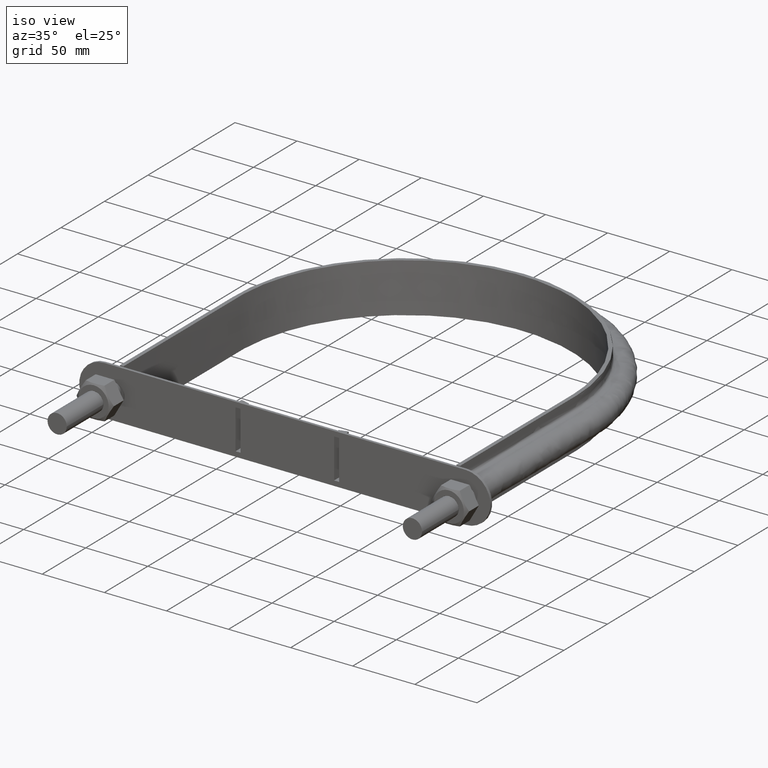
[diagram: clean part render]
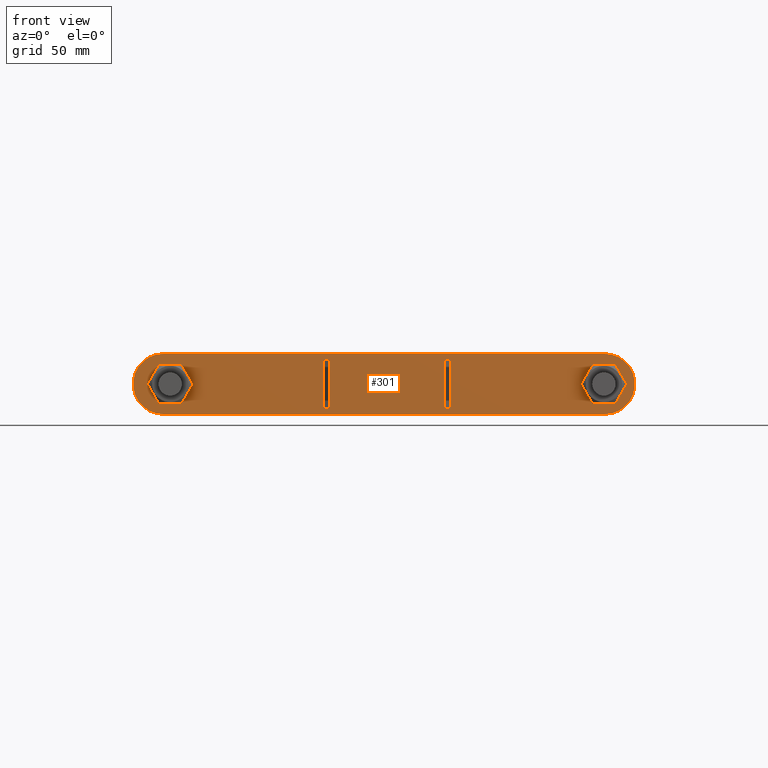
[diagram: tour spotlight — one face highlighted and labeled with its STEP entity id]
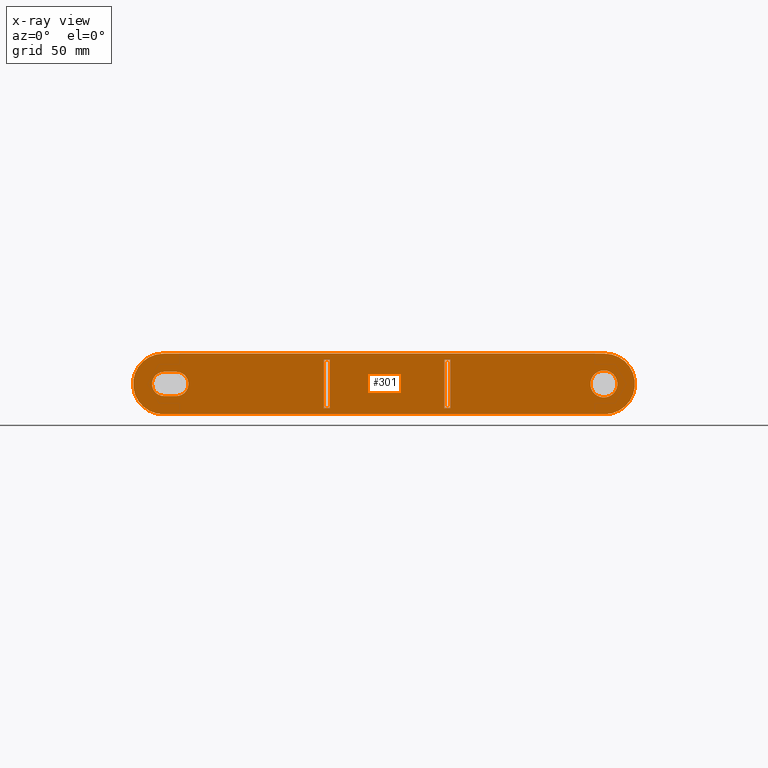
[diagram: x-ray of the same camera — body ghosted, this tour face saturated]
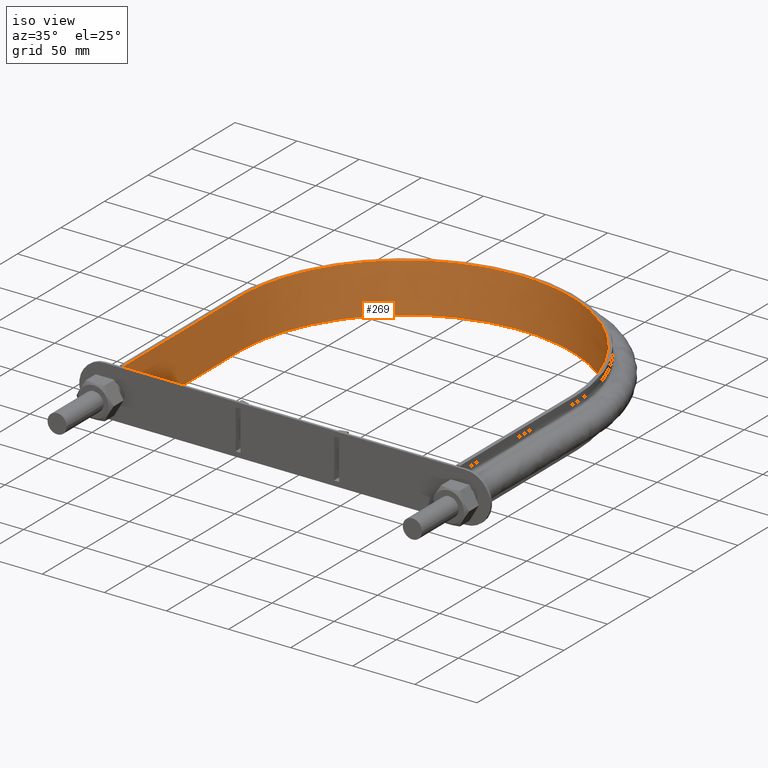
[diagram: tour spotlight — one face highlighted and labeled with its STEP entity id]
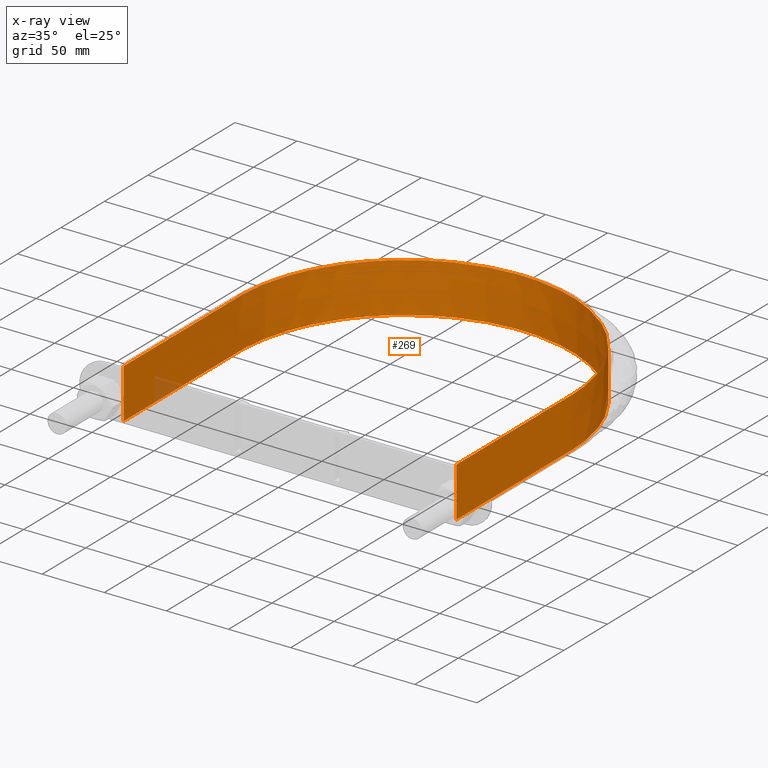
[diagram: x-ray of the same camera — body ghosted, this tour face saturated]
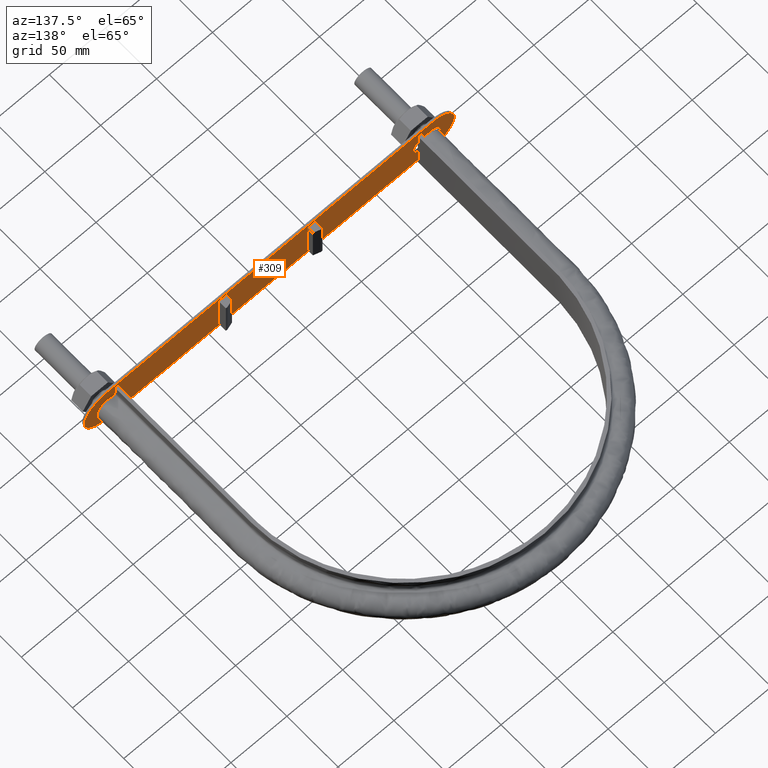
[diagram: tour spotlight — one face highlighted and labeled with its STEP entity id]
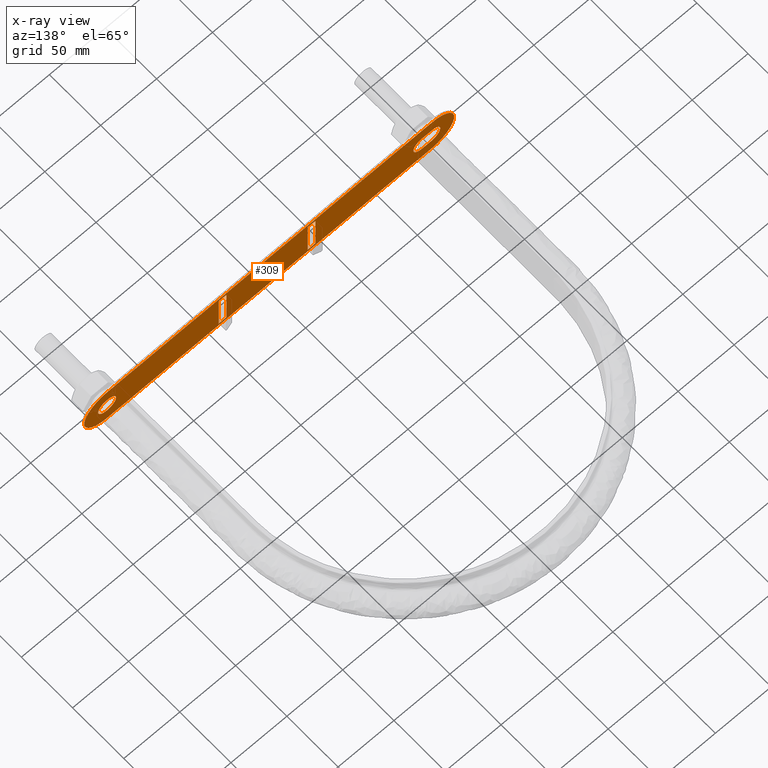
[diagram: x-ray of the same camera — body ghosted, this tour face saturated]
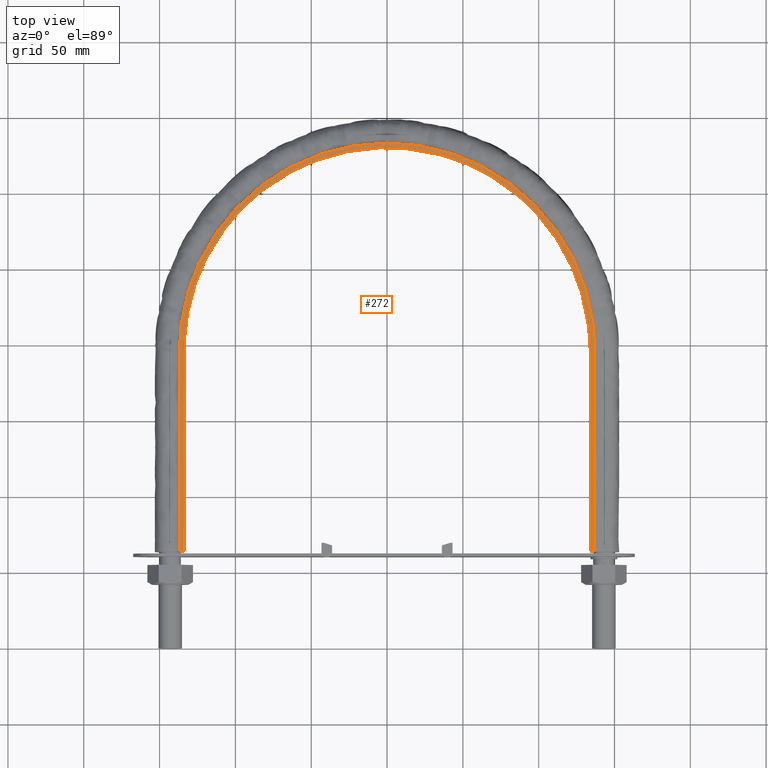
[diagram: tour spotlight — one face highlighted and labeled with its STEP entity id]
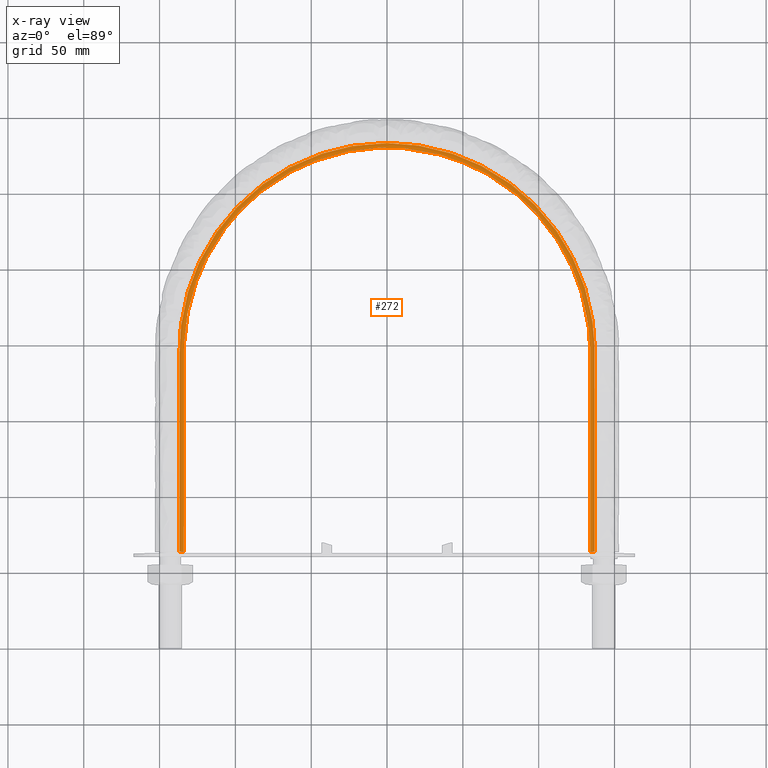
[diagram: x-ray of the same camera — body ghosted, this tour face saturated]
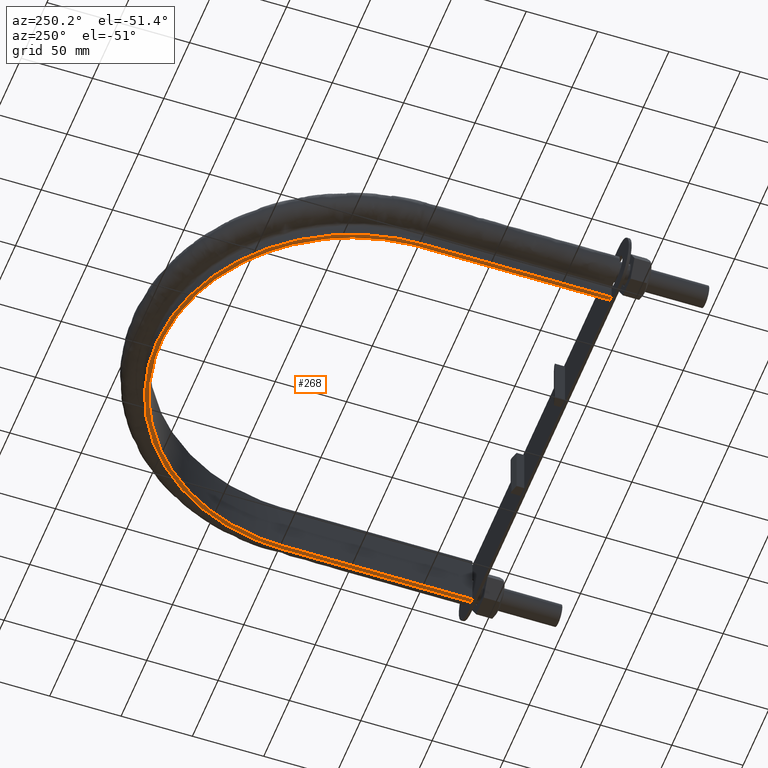
[diagram: tour spotlight — one face highlighted and labeled with its STEP entity id]
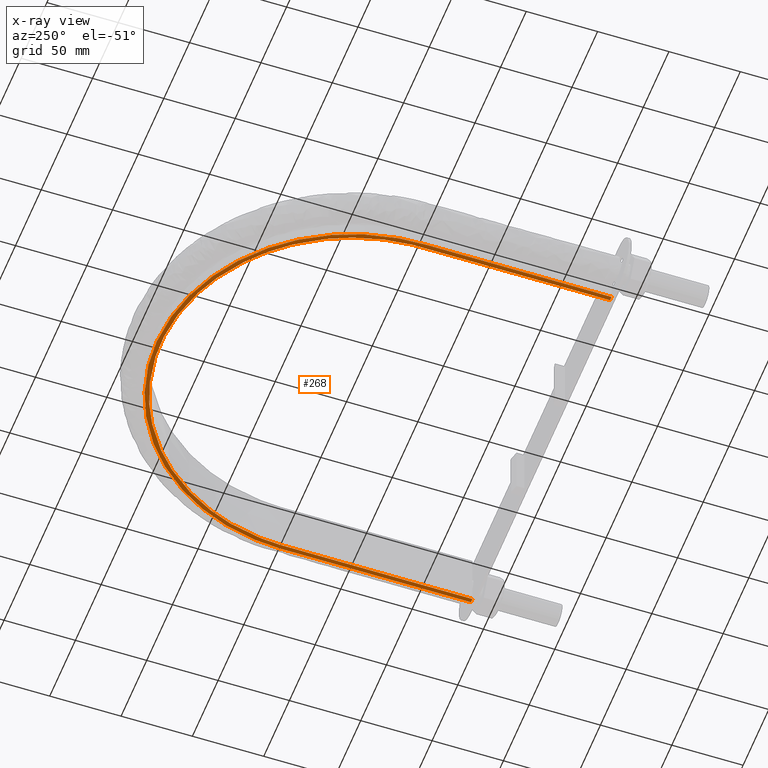
[diagram: x-ray of the same camera — body ghosted, this tour face saturated]
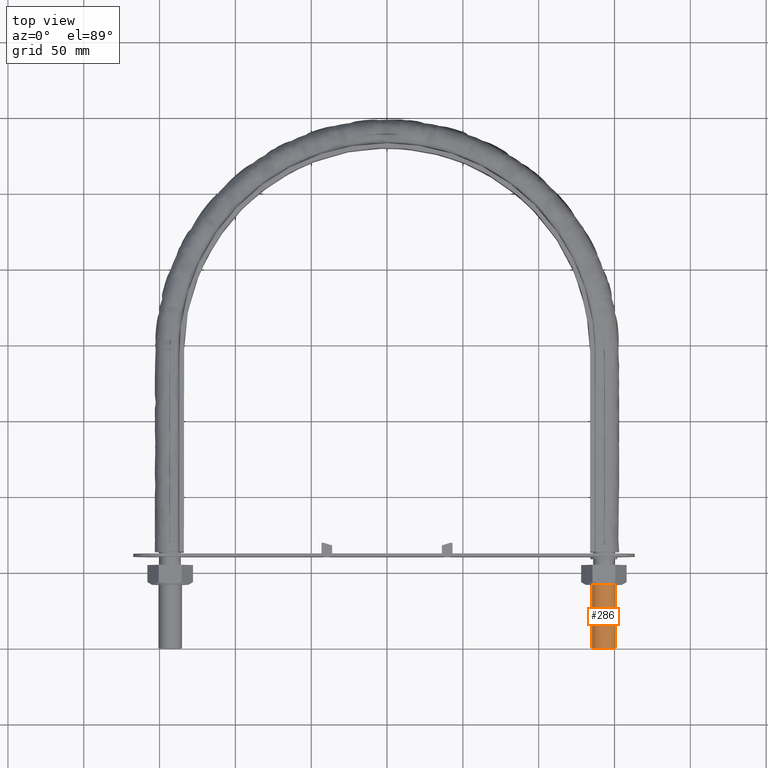
[diagram: tour spotlight — one face highlighted and labeled with its STEP entity id]
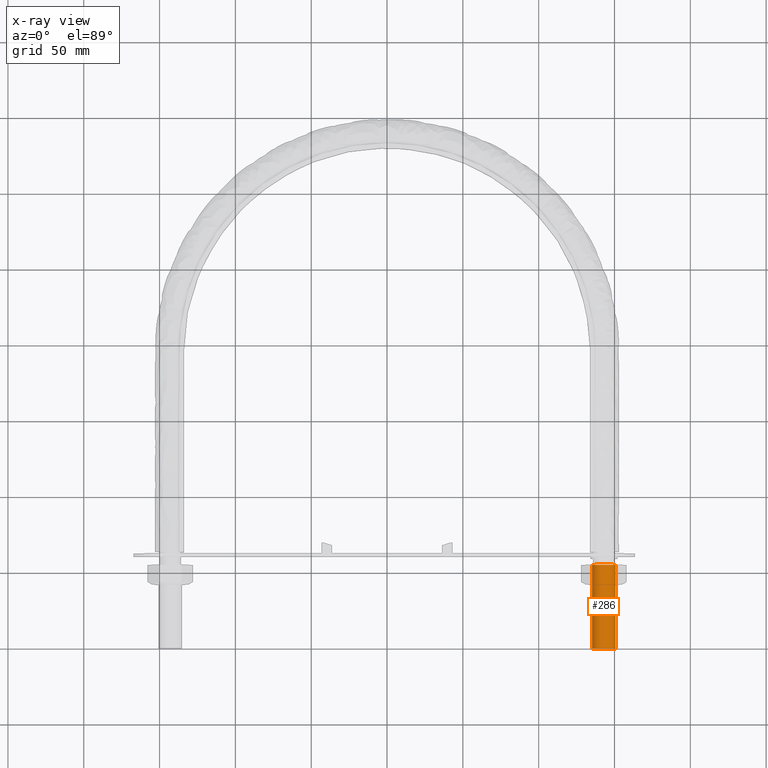
[diagram: x-ray of the same camera — body ghosted, this tour face saturated]
A machine part: a face-by-face anatomy tour. The part has 93 B-rep faces; the first image is the clean iso view, then the 6 largest visible faces are spotlighted one at a time (largest first), each with its STEP entity span.

Face 1 — front view, entity #301. An x-ray twin of the same camera follows (body ghosted, this face saturated) — the face is partly hidden behind the body. In plain terms, the highlighted planar face has unit normal (-0, 1, 0).
Definition (entity closure, byte-faithful):
#301 = ADVANCED_FACE( '', ( #439, #440, #441, #442, #443 ), #444, .F. );
#439 = FACE_OUTER_BOUND( '', #1576, .T. );
#440 = FACE_BOUND( '', #1577, .T. );
#441 = FACE_BOUND( '', #1578, .T. );
#442 = FACE_BOUND( '', #1579, .T. );
#443 = FACE_BOUND( '', #1580, .T. );
#444 = PLANE( '', #1581 );
#1576 = EDGE_LOOP( '', ( #2123, #2124, #2125, #2126 ) );
#1577 = EDGE_LOOP( '', ( #2127, #2128, #2129, #2130 ) );
#1578 = EDGE_LOOP( '', ( #2131 ) );
#1579 = EDGE_LOOP( '', ( #2132, #2133, #2134, #2135 ) );
#1580 = EDGE_LOOP( '', ( #2136, #2137, #2138, #2139 ) );
#1581 = AXIS2_PLACEMENT_3D( '', #2140, #2141, #2142 );
#2123 = ORIENTED_EDGE( '', *, *, #2614, .F. );
#2124 = ORIENTED_EDGE( '', *, *, #2615, .F. );
#2125 = ORIENTED_EDGE( '', *, *, #2616, .F. );
#2126 = ORIENTED_EDGE( '', *, *, #2617, .F. );
#2127 = ORIENTED_EDGE( '', *, *, #2618, .F. );
#2128 = ORIENTED_EDGE( '', *, *, #2619, .T. );
#2129 = ORIENTED_EDGE( '', *, *, #2620, .T. );
#2130 = ORIENTED_EDGE( '', *, *, #2621, .F. );
#2131 = ORIENTED_EDGE( '', *, *, #2622, .T. );
#2132 = ORIENTED_EDGE( '', *, *, #2623, .F. );
#2133 = ORIENTED_EDGE( '', *, *, #2624, .F. );
#2134 = ORIENTED_EDGE( '', *, *, #2625, .F. );
#2135 = ORIENTED_EDGE( '', *, *, #2626, .F. );
#2136 = ORIENTED_EDGE( '', *, *, #2627, .T. );
#2137 = ORIENTED_EDGE( '', *, *, #2628, .T. );
#2138 = ORIENTED_EDGE( '', *, *, #2629, .F. );
#2139 = ORIENTED_EDGE( '', *, *, #2630, .F. );
#2140 = CARTESIAN_POINT( '', ( -147.499999999969, 60.3999999977114, 1.03328031514239E-006 ) );
#2141 = DIRECTION( '', ( -1.56855491318814E-022, 1.00000000000000, 1.01088637402293E-011 ) );
#2142 = DIRECTION( '', ( 1.00000000000000, 2.35098870164458E-038, 1.55166293017277E-011 ) );
#2614 = EDGE_CURVE( '', #2836, #2837, #2838, .T. );
#2615 = EDGE_CURVE( '', #2839, #2836, #2840, .F. );
#2616 = EDGE_CURVE( '', #2841, #2839, #2842, .T. );
#2617 = EDGE_CURVE( '', #2837, #2841, #2843, .F. );
#2618 = EDGE_CURVE( '', #2844, #2845, #2846, .F. );
#2619 = EDGE_CURVE( '', #2844, #2847, #2848, .T. );
#2620 = EDGE_CURVE( '', #2847, #2849, #2850, .T. );
#2621 = EDGE_CURVE( '', #2845, #2849, #2851, .T. );
#2622 = EDGE_CURVE( '', #2852, #2852, #2853, .T. );
#2623 = EDGE_CURVE( '', #2854, #2855, #2856, .F. );
#2624 = EDGE_CURVE( '', #2857, #2854, #2858, .T. );
#2625 = EDGE_CURVE( '', #2859, #2857, #2860, .F. );
#2626 = EDGE_CURVE( '', #2855, #2859, #2861, .T. );
#2627 = EDGE_CURVE( '', #2862, #2863, #2864, .F. );
#2628 = EDGE_CURVE( '', #2863, #2865, #2866, .T. );
#2629 = EDGE_CURVE( '', #2867, #2865, #2868, .T. );
#2630 = EDGE_CURVE( '', #2862, #2867, #2869, .T. );
#2836 = VERTEX_POINT( '', #3640 );
#2837 = VERTEX_POINT( '', #3641 );
#2838 = CIRCLE( '', #3642, 20.0000000000000 );
#2839 = VERTEX_POINT( '', #3643 );
#2840 = LINE( '', #3644, #3645 );
#2841 = VERTEX_POINT( '', #3646 );
#2842 = CIRCLE( '', #3647, 20.0000000000000 );
#2843 = LINE( '', #3648, #3649 );
#2844 = VERTEX_POINT( '', #3650 );
#2845 = VERTEX_POINT( '', #3651 );
#2846 = LINE( '', #3652, #3653 );
#2847 = VERTEX_POINT( '', #3654 );
#2848 = LINE( '', #3655, #3656 );
#2849 = VERTEX_POINT( '', #3657 );
#2850 = LINE( '', #3658, #3659 );
#2851 = LINE( '', #3660, #3661 );
#2852 = VERTEX_POINT( '', #3662 );
#2853 = CIRCLE( '', #3663, 8.89999999999999 );
#2854 = VERTEX_POINT( '', #3664 );
#2855 = VERTEX_POINT( '', #3665 );
#2856 = CIRCLE( '', #3666, 8.00000000000000 );
#2857 = VERTEX_POINT( '', #3667 );
#2858 = LINE( '', #3668, #3669 );
#2859 = VERTEX_POINT( '', #3670 );
#2860 = CIRCLE( '', #3671, 8.00000000000000 );
#2861 = LINE( '', #3672, #3673 );
#2862 = VERTEX_POINT( '', #3674 );
#2863 = VERTEX_POINT( '', #3675 );
#2864 = LINE( '', #3676, #3677 );
#2865 = VERTEX_POINT( '', #3678 );
#2866 = LINE( '', #3679, #3680 );
#2867 = VERTEX_POINT( '', #3681 );
#2868 = LINE( '', #3682, #3683 );
#2869 = LINE( '', #3684, #3685 );
#3640 = CARTESIAN_POINT( '', ( -147.500000140078, 60.3999999979136, -19.9999989667197 ) );
#3641 = CARTESIAN_POINT( '', ( -147.499999929915, 60.3999999975092, 20.0000010332803 ) );
#3642 = AXIS2_PLACEMENT_3D( '', #4160, #4161, #4162 );
#3643 = CARTESIAN_POINT( '', ( 143.499999859923, 60.3999999979136, -20.0000010053000 ) );
#3644 = CARTESIAN_POINT( '', ( 143.499999859922, 60.3999999979136, -20.0000010053000 ) );
#3645 = VECTOR( '', #4163, 1000.00000000000 );
#3646 = CARTESIAN_POINT( '', ( 143.500000070086, 60.3999999975092, 19.9999989947000 ) );
#3647 = AXIS2_PLACEMENT_3D( '', #4164, #4165, #4166 );
#3648 = CARTESIAN_POINT( '', ( -147.499999859860, 60.3999999975092, 20.0000010332803 ) );
#3649 = VECTOR( '', #4167, 1000.00000000000 );
#3650 = CARTESIAN_POINT( '', ( -41.7000001120559, 60.3999999978731, -15.9999997078942 ) );
#3651 = CARTESIAN_POINT( '', ( -37.7000001120559, 60.3999999978731, -15.9999997359160 ) );
#3652 = CARTESIAN_POINT( '', ( -41.7000001121709, 60.3999999978731, -15.9999997078942 ) );
#3653 = VECTOR( '', #4168, 1000.00000000000 );
#3654 = CARTESIAN_POINT( '', ( -41.6999998878821, 60.3999999975497, 16.0000002921058 ) );
#3655 = CARTESIAN_POINT( '', ( -41.6999999999690, 60.3999999977114, 2.92105749198484E-007 ) );
#3656 = VECTOR( '', #4169, 1000.00000000000 );
#3657 = CARTESIAN_POINT( '', ( -37.6999998878821, 60.3999999975496, 16.0000002640840 ) );
#3658 = CARTESIAN_POINT( '', ( -147.499999887882, 60.3999999975497, 16.0000010332803 ) );
#3659 = VECTOR( '', #4170, 1000.00000000000 );
#3660 = CARTESIAN_POINT( '', ( -37.7000001120559, 60.3999999978731, -15.9999997359160 ) );
#3661 = VECTOR( '', #4171, 1000.00000000000 );
#3662 = CARTESIAN_POINT( '', ( 143.000000000031, 60.3999999976214, 8.89999899820267 ) );
#3663 = AXIS2_PLACEMENT_3D( '', #4172, #4173, #4174 );
#3664 = CARTESIAN_POINT( '', ( -146.999999971947, 60.3999999976305, 8.00000102977759 ) );
#3665 = CARTESIAN_POINT( '', ( -147.000000056013, 60.3999999977923, -7.99999897022241 ) );
#3666 = AXIS2_PLACEMENT_3D( '', #4175, #4176, #4177 );
#3667 = CARTESIAN_POINT( '', ( -138.999999971947, 60.3999999976305, 8.00000097373415 ) );
#3668 = CARTESIAN_POINT( '', ( -138.999999943957, 60.3999999976305, 8.00000097373415 ) );
#3669 = VECTOR( '', #4178, 1000.00000000000 );
#3670 = CARTESIAN_POINT( '', ( -139.000000056013, 60.3999999977923, -7.99999902626585 ) );
#3671 = AXIS2_PLACEMENT_3D( '', #4179, #4180, #4181 );
#3672 = CARTESIAN_POINT( '', ( -147.000000056044, 60.3999999977923, -7.99999897022241 ) );
#3673 = VECTOR( '', #4182, 1000.00000000000 );
#3674 = CARTESIAN_POINT( '', ( 41.6999998879441, 60.3999999978731, -16.0000002921471 ) );
#3675 = CARTESIAN_POINT( '', ( 37.6999998879441, 60.3999999978731, -16.0000002641254 ) );
#3676 = CARTESIAN_POINT( '', ( -147.500000112056, 60.3999999978731, -15.9999989667197 ) );
#3677 = VECTOR( '', #4183, 1000.00000000000 );
#3678 = CARTESIAN_POINT( '', ( 37.7000001121179, 60.3999999975496, 15.9999997358746 ) );
#3679 = CARTESIAN_POINT( '', ( 37.7000000000310, 60.3999999977114, -2.64125446793445E-007 ) );
#3680 = VECTOR( '', #4184, 1000.00000000000 );
#3681 = CARTESIAN_POINT( '', ( 41.7000001121179, 60.3999999975496, 15.9999997078529 ) );
#3682 = CARTESIAN_POINT( '', ( 41.7000001120029, 60.3999999975496, 15.9999997078529 ) );
#3683 = VECTOR( '', #4185, 1000.00000000000 );
#3684 = CARTESIAN_POINT( '', ( 41.6999998879441, 60.3999999978731, -16.0000002921471 ) );
#3685 = VECTOR( '', #4186, 1000.00000000000 );
#4160 = CARTESIAN_POINT( '', ( -147.499999999969, 60.3999999977114, 1.03328031514239E-006 ) );
#4161 = DIRECTION( '', ( -1.56855491318814E-022, 1.00000000000000, 1.01088637402293E-011 ) );
#4162 = DIRECTION( '', ( 0.000000000000000, -1.01088637402293E-011, 1.00000000000000 ) );
#4163 = DIRECTION( '', ( 1.00000000000000, 7.09737996770515E-020, -7.00543067999911E-009 ) );
#4164 = CARTESIAN_POINT( '', ( 143.500000000031, 60.3999999977114, -1.00530001273736E-006 ) );
#4165 = DIRECTION( '', ( -1.56855491318814E-022, 1.00000000000000, 1.01088637402293E-011 ) );
#4166 = DIRECTION( '', ( 0.000000000000000, -1.01088637402293E-011, 1.00000000000000 ) );
#4167 = DIRECTION( '', ( -1.00000000000000, -7.09737996770515E-020, 7.00543067999911E-009 ) );
#4168 = DIRECTION( '', ( -1.00000000000000, -7.09737995515944E-020, 7.00543066758851E-009 ) );
#4169 = DIRECTION( '', ( 7.00543067999911E-009, -1.01088637402293E-011, 1.00000000000000 ) );
#4170 = DIRECTION( '', ( 1.00000000000000, 7.09737995515944E-020, -7.00543066758851E-009 ) );
#4171 = DIRECTION( '', ( 7.00543067999911E-009, -1.01088637402293E-011, 1.00000000000000 ) );
#4172 = CARTESIAN_POINT( '', ( 143.000000000031, 60.3999999977114, -1.00179731821404E-006 ) );
#4173 = DIRECTION( '', ( -1.56855491318814E-022, 1.00000000000000, 1.01088637402293E-011 ) );
#4174 = DIRECTION( '', ( 0.000000000000000, -1.01088637402293E-011, 1.00000000000000 ) );
#4175 = CARTESIAN_POINT( '', ( -146.999999999969, 60.3999999977114, 1.02977759286350E-006 ) );
#4176 = DIRECTION( '', ( -1.56855491318814E-022, 1.00000000000000, 1.01088637402293E-011 ) );
#4177 = DIRECTION( '', ( 0.000000000000000, -1.01088637402293E-011, 1.00000000000000 ) );
#4178 = DIRECTION( '', ( -1.00000000000000, -7.09737996770515E-020, 7.00543067999911E-009 ) );
#4179 = CARTESIAN_POINT( '', ( -138.999999999969, 60.3999999977114, 9.73734147423503E-007 ) );
#4180 = DIRECTION( '', ( -1.56855491318814E-022, 1.00000000000000, 1.01088637402293E-011 ) );
#4181 = DIRECTION( '', ( 0.000000000000000, -1.01088637402293E-011, 1.00000000000000 ) );
#4182 = DIRECTION( '', ( 1.00000000000000, 7.09737996770515E-020, -7.00543067999911E-009 ) );
#4183 = DIRECTION( '', ( 1.00000000000000, 7.09737998025086E-020, -7.00543069240972E-009 ) );
#4184 = DIRECTION( '', ( 7.00543067999911E-009, -1.01088637402293E-011, 1.00000000000000 ) );
#4185 = DIRECTION( '', ( -1.00000000000000, -7.09737998025086E-020, 7.00543069240972E-009 ) );
#4186 = DIRECTION( '', ( 7.00543067999911E-009, -1.01088637402293E-011, 1.00000000000000 ) );

Face 2 — iso view, entity #269. An x-ray twin of the same camera follows (body ghosted, this face saturated) — the face is partly hidden behind the body. In plain terms, the highlighted face is a SurfaceOfExtrusion surface.
Definition (entity closure, byte-faithful):
#269 = ADVANCED_FACE( '', ( #365 ), #366, .T. );
#365 = FACE_OUTER_BOUND( '', #585, .T. );
#366 = SURFACE_OF_LINEAR_EXTRUSION( '', #586, #587 );
#585 = EDGE_LOOP( '', ( #1822, #1823, #1824, #1825 ) );
#586 = B_SPLINE_CURVE_WITH_KNOTS( '', 3, ( #1826, #1827, #1828, #1829, #1830, #1831, #1832, #1833, #1834, #1835, #1836, #1837, #1838, #1839, #1840, #1841, #1842 ), .UNSPECIFIED., .F., .F., ( 4, 3, 1, 1, 1, 1, 1, 1, 1, 3, 4 ), ( -10.0000000000000, -9.00000000000000, -8.00000000000000, -7.00000000000000, -6.00000000000000, -5.00000000000000, -4.00000000000000, -3.00000000000000, -2.00000000000000, -1.00000000000000, 0.000000000000000 ), .UNSPECIFIED. );
#587 = VECTOR( '', #1843, 1000.00000000000 );
#1822 = ORIENTED_EDGE( '', *, *, #2564, .T. );
#1823 = ORIENTED_EDGE( '', *, *, #2565, .F. );
#1824 = ORIENTED_EDGE( '', *, *, #2566, .F. );
#1825 = ORIENTED_EDGE( '', *, *, #2560, .T. );
#1826 = CARTESIAN_POINT( '', ( -133.950000000000, 63.5000000000001, -440.423363781454 ) );
#1827 = CARTESIAN_POINT( '', ( -133.950000000000, 107.683333333333, -440.423363781454 ) );
#1828 = CARTESIAN_POINT( '', ( -133.950000000000, 151.866666666667, -440.423363781454 ) );
#1829 = CARTESIAN_POINT( '', ( -133.950000000000, 196.050000000000, -440.423363781454 ) );
#1830 = CARTESIAN_POINT( '', ( -133.950000000000, 213.566032700257, -440.423363781454 ) );
#1831 = CARTESIAN_POINT( '', ( -126.975474198415, 248.652216480459, -440.423363781454 ) );
#1832 = CARTESIAN_POINT( '', ( -97.1828205848687, 293.230867859828, -440.423363781454 ) );
#1833 = CARTESIAN_POINT( '', ( -52.5949635017385, 323.026032119855, -440.423363781454 ) );
#1834 = CARTESIAN_POINT( '', ( 9.63501791762652E-014, 333.486983940073, -440.423363781454 ) );
#1835 = CARTESIAN_POINT( '', ( 52.5949635017385, 323.026032119855, -440.423363781454 ) );
#1836 = CARTESIAN_POINT( '', ( 97.1828205848688, 293.230867859828, -440.423363781454 ) );
#1837 = CARTESIAN_POINT( '', ( 126.975474198415, 248.652216480460, -440.423363781454 ) );
#1838 = CARTESIAN_POINT( '', ( 133.950000000000, 213.566032700257, -440.423363781454 ) );
#1839 = CARTESIAN_POINT( '', ( 133.950000000000, 196.050000000000, -440.423363781454 ) );
#1840 = CARTESIAN_POINT( '', ( 133.950000000000, 151.866666666667, -440.423363781454 ) );
#1841 = CARTESIAN_POINT( '', ( 133.950000000000, 107.683333333333, -440.423363781454 ) );
#1842 = CARTESIAN_POINT( '', ( 133.950000000000, 63.5000000000000, -440.423363781454 ) );
#1843 = DIRECTION( '', ( 0.000000000000000, 0.000000000000000, 1.00000000000000 ) );
#2560 = EDGE_CURVE( '', #2750, #2751, #2752, .T. );
#2564 = EDGE_CURVE( '', #2751, #2758, #2759, .T. );
#2565 = EDGE_CURVE( '', #2760, #2758, #2761, .T. );
#2566 = EDGE_CURVE( '', #2750, #2760, #2762, .T. );
#2750 = VERTEX_POINT( '', #3186 );
#2751 = VERTEX_POINT( '', #3187 );
#2752 = B_SPLINE_CURVE_WITH_KNOTS( '', 3, ( #3188, #3189, #3190, #3191, #3192, #3193, #3194, #3195, #3196, #3197, #3198, #3199, #3200, #3201, #3202, #3203, #3204 ), .UNSPECIFIED., .F., .F., ( 4, 3, 1, 1, 1, 1, 1, 1, 1, 3, 4 ), ( -10.0000000000000, -9.00000000000000, -8.00000000000000, -7.00000000000000, -6.00000000000000, -5.00000000000000, -4.00000000000000, -3.00000000000000, -2.00000000000000, -1.00000000000000, 0.000000000000000 ), .UNSPECIFIED. );
#2758 = VERTEX_POINT( '', #3318 );
#2759 = LINE( '', #3319, #3320 );
#2760 = VERTEX_POINT( '', #3321 );
#2761 = B_SPLINE_CURVE_WITH_KNOTS( '', 3, ( #3322, #3323, #3324, #3325, #3326, #3327, #3328, #3329, #3330, #3331, #3332, #3333, #3334, #3335, #3336, #3337, #3338 ), .UNSPECIFIED., .F., .F., ( 4, 3, 1, 1, 1, 1, 1, 1, 1, 3, 4 ), ( -10.0000000000000, -9.00000000000000, -8.00000000000000, -7.00000000000000, -6.00000000000000, -5.00000000000000, -4.00000000000000, -3.00000000000000, -2.00000000000000, -1.00000000000000, 0.000000000000000 ), .UNSPECIFIED. );
#2762 = LINE( '', #3339, #3340 );
#3186 = CARTESIAN_POINT( '', ( -133.950000000000, 63.5000000000001, -20.0000000000000 ) );
#3187 = CARTESIAN_POINT( '', ( 133.950000000000, 63.5000000000000, -20.0000000000000 ) );
#3188 = CARTESIAN_POINT( '', ( -133.950000000000, 63.5000000000001, -20.0000000000000 ) );
#3189 = CARTESIAN_POINT( '', ( -133.950000000000, 107.683333333333, -20.0000000000000 ) );
#3190 = CARTESIAN_POINT( '', ( -133.950000000000, 151.866666666667, -20.0000000000000 ) );
#3191 = CARTESIAN_POINT( '', ( -133.950000000000, 196.050000000000, -20.0000000000000 ) );
#3192 = CARTESIAN_POINT( '', ( -133.950000000000, 213.566032700257, -20.0000000000000 ) );
#3193 = CARTESIAN_POINT( '', ( -126.975474198415, 248.652216480459, -20.0000000000000 ) );
#3194 = CARTESIAN_POINT( '', ( -97.1828205848687, 293.230867859828, -20.0000000000000 ) );
#3195 = CARTESIAN_POINT( '', ( -52.5949635017385, 323.026032119855, -20.0000000000000 ) );
#3196 = CARTESIAN_POINT( '', ( 9.63501791762652E-014, 333.486983940073, -20.0000000000000 ) );
#3197 = CARTESIAN_POINT( '', ( 52.5949635017385, 323.026032119855, -20.0000000000000 ) );
#3198 = CARTESIAN_POINT( '', ( 97.1828205848688, 293.230867859828, -20.0000000000000 ) );
#3199 = CARTESIAN_POINT( '', ( 126.975474198415, 248.652216480460, -20.0000000000000 ) );
#3200 = CARTESIAN_POINT( '', ( 133.950000000000, 213.566032700257, -20.0000000000000 ) );
#3201 = CARTESIAN_POINT( '', ( 133.950000000000, 196.050000000000, -20.0000000000000 ) );
#3202 = CARTESIAN_POINT( '', ( 133.950000000000, 151.866666666667, -20.0000000000000 ) );
#3203 = CARTESIAN_POINT( '', ( 133.950000000000, 107.683333333333, -20.0000000000000 ) );
#3204 = CARTESIAN_POINT( '', ( 133.950000000000, 63.5000000000000, -20.0000000000000 ) );
#3318 = CARTESIAN_POINT( '', ( 133.950000000000, 63.5000000000000, 20.0000000000000 ) );
#3319 = CARTESIAN_POINT( '', ( 133.950000000000, 63.5000000000000, -440.423363781454 ) );
#3320 = VECTOR( '', #4088, 1000.00000000000 );
#3321 = CARTESIAN_POINT( '', ( -133.950000000000, 63.5000000000001, 20.0000000000000 ) );
#3322 = CARTESIAN_POINT( '', ( -133.950000000000, 63.5000000000001, 20.0000000000000 ) );
#3323 = CARTESIAN_POINT( '', ( -133.950000000000, 107.683333333333, 20.0000000000000 ) );
#3324 = CARTESIAN_POINT( '', ( -133.950000000000, 151.866666666667, 20.0000000000000 ) );
#3325 = CARTESIAN_POINT( '', ( -133.950000000000, 196.050000000000, 20.0000000000000 ) );
#3326 = CARTESIAN_POINT( '', ( -133.950000000000, 213.566032700257, 20.0000000000000 ) );
#3327 = CARTESIAN_POINT( '', ( -126.975474198415, 248.652216480459, 20.0000000000000 ) );
#3328 = CARTESIAN_POINT( '', ( -97.1828205848687, 293.230867859828, 20.0000000000000 ) );
#3329 = CARTESIAN_POINT( '', ( -52.5949635017385, 323.026032119855, 20.0000000000000 ) );
#3330 = CARTESIAN_POINT( '', ( 9.63501791762652E-014, 333.486983940073, 20.0000000000000 ) );
#3331 = CARTESIAN_POINT( '', ( 52.5949635017385, 323.026032119855, 20.0000000000000 ) );
#3332 = CARTESIAN_POINT( '', ( 97.1828205848688, 293.230867859828, 20.0000000000000 ) );
#3333 = CARTESIAN_POINT( '', ( 126.975474198415, 248.652216480460, 20.0000000000000 ) );
#3334 = CARTESIAN_POINT( '', ( 133.950000000000, 213.566032700257, 20.0000000000000 ) );
#3335 = CARTESIAN_POINT( '', ( 133.950000000000, 196.050000000000, 20.0000000000000 ) );
#3336 = CARTESIAN_POINT( '', ( 133.950000000000, 151.866666666667, 20.0000000000000 ) );
#3337 = CARTESIAN_POINT( '', ( 133.950000000000, 107.683333333333, 20.0000000000000 ) );
#3338 = CARTESIAN_POINT( '', ( 133.950000000000, 63.5000000000000, 20.0000000000000 ) );
#3339 = CARTESIAN_POINT( '', ( -133.950000000000, 63.5000000000001, -440.423363781454 ) );
#3340 = VECTOR( '', #4089, 1000.00000000000 );
#4088 = DIRECTION( '', ( 0.000000000000000, 0.000000000000000, 1.00000000000000 ) );
#4089 = DIRECTION( '', ( 0.000000000000000, 0.000000000000000, 1.00000000000000 ) );

Face 3 — auxiliary view, entity #309. An x-ray twin of the same camera follows (body ghosted, this face saturated) — the face is partly hidden behind the body. In plain terms, the highlighted planar face has unit normal (-0, 1, 0).
Definition (entity closure, byte-faithful):
#309 = ADVANCED_FACE( '', ( #459, #460, #461, #462, #463 ), #464, .T. );
#459 = FACE_OUTER_BOUND( '', #1596, .T. );
#460 = FACE_BOUND( '', #1597, .T. );
#461 = FACE_BOUND( '', #1598, .T. );
#462 = FACE_BOUND( '', #1599, .T. );
#463 = FACE_BOUND( '', #1600, .T. );
#464 = PLANE( '', #1601 );
#1596 = EDGE_LOOP( '', ( #2194, #2195, #2196, #2197 ) );
#1597 = EDGE_LOOP( '', ( #2198, #2199, #2200, #2201 ) );
#1598 = EDGE_LOOP( '', ( #2202, #2203, #2204, #2205 ) );
#1599 = EDGE_LOOP( '', ( #2206 ) );
#1600 = EDGE_LOOP( '', ( #2207, #2208, #2209, #2210 ) );
#1601 = AXIS2_PLACEMENT_3D( '', #2211, #2212, #2213 );
#2194 = ORIENTED_EDGE( '', *, *, #2654, .T. );
#2195 = ORIENTED_EDGE( '', *, *, #2655, .T. );
#2196 = ORIENTED_EDGE( '', *, *, #2656, .T. );
#2197 = ORIENTED_EDGE( '', *, *, #2657, .T. );
#2198 = ORIENTED_EDGE( '', *, *, #2658, .T. );
#2199 = ORIENTED_EDGE( '', *, *, #2659, .T. );
#2200 = ORIENTED_EDGE( '', *, *, #2652, .F. );
#2201 = ORIENTED_EDGE( '', *, *, #2660, .F. );
#2202 = ORIENTED_EDGE( '', *, *, #2661, .T. );
#2203 = ORIENTED_EDGE( '', *, *, #2662, .T. );
#2204 = ORIENTED_EDGE( '', *, *, #2663, .T. );
#2205 = ORIENTED_EDGE( '', *, *, #2664, .T. );
#2206 = ORIENTED_EDGE( '', *, *, #2665, .F. );
#2207 = ORIENTED_EDGE( '', *, *, #2666, .F. );
#2208 = ORIENTED_EDGE( '', *, *, #2634, .T. );
#2209 = ORIENTED_EDGE( '', *, *, #2640, .T. );
#2210 = ORIENTED_EDGE( '', *, *, #2667, .F. );
#2211 = CARTESIAN_POINT( '', ( -147.500000000000, 62.3999999977114, 1.03330053286987E-006 ) );
#2212 = DIRECTION( '', ( -1.56855491318814E-022, 1.00000000000000, 1.01088637402293E-011 ) );
#2213 = DIRECTION( '', ( 1.00000000000000, 2.35098870164458E-038, 1.55166293017277E-011 ) );
#2634 = EDGE_CURVE( '', #2875, #2876, #2877, .T. );
#2640 = EDGE_CURVE( '', #2876, #2885, #2888, .F. );
#2652 = EDGE_CURVE( '', #2906, #2908, #2909, .T. );
#2654 = EDGE_CURVE( '', #2911, #2912, #2913, .T. );
#2655 = EDGE_CURVE( '', #2912, #2914, #2915, .T. );
#2656 = EDGE_CURVE( '', #2914, #2916, #2917, .T. );
#2657 = EDGE_CURVE( '', #2916, #2911, #2918, .T. );
#2658 = EDGE_CURVE( '', #2919, #2920, #2921, .F. );
#2659 = EDGE_CURVE( '', #2920, #2908, #2922, .F. );
#2660 = EDGE_CURVE( '', #2919, #2906, #2923, .F. );
#2661 = EDGE_CURVE( '', #2924, #2925, #2926, .F. );
#2662 = EDGE_CURVE( '', #2925, #2927, #2928, .F. );
#2663 = EDGE_CURVE( '', #2927, #2929, #2930, .F. );
#2664 = EDGE_CURVE( '', #2929, #2924, #2931, .F. );
#2665 = EDGE_CURVE( '', #2932, #2932, #2933, .T. );
#2666 = EDGE_CURVE( '', #2875, #2934, #2935, .F. );
#2667 = EDGE_CURVE( '', #2934, #2885, #2936, .F. );
#2875 = VERTEX_POINT( '', #3694 );
#2876 = VERTEX_POINT( '', #3695 );
#2877 = LINE( '', #3696, #3697 );
#2885 = VERTEX_POINT( '', #3709 );
#2888 = LINE( '', #3713, #3714 );
#2906 = VERTEX_POINT( '', #3742 );
#2908 = VERTEX_POINT( '', #3745 );
#2909 = LINE( '', #3746, #3747 );
#2911 = VERTEX_POINT( '', #3750 );
#2912 = VERTEX_POINT( '', #3751 );
#2913 = CIRCLE( '', #3752, 20.0000000000000 );
#2914 = VERTEX_POINT( '', #3753 );
#2915 = LINE( '', #3754, #3755 );
#2916 = VERTEX_POINT( '', #3756 );
#2917 = CIRCLE( '', #3757, 20.0000000000000 );
#2918 = LINE( '', #3758, #3759 );
#2919 = VERTEX_POINT( '', #3760 );
#2920 = VERTEX_POINT( '', #3761 );
#2921 = LINE( '', #3762, #3763 );
#2922 = LINE( '', #3764, #3765 );
#2923 = LINE( '', #3766, #3767 );
#2924 = VERTEX_POINT( '', #3768 );
#2925 = VERTEX_POINT( '', #3769 );
#2926 = LINE( '', #3770, #3771 );
#2927 = VERTEX_POINT( '', #3772 );
#2928 = CIRCLE( '', #3773, 8.00000000000000 );
#2929 = VERTEX_POINT( '', #3774 );
#2930 = LINE( '', #3775, #3776 );
#2931 = CIRCLE( '', #3777, 8.00000000000000 );
#2932 = VERTEX_POINT( '', #3778 );
#2933 = CIRCLE( '', #3779, 8.00000000000001 );
#2934 = VERTEX_POINT( '', #3780 );
#2935 = LINE( '', #3781, #3782 );
#2936 = LINE( '', #3783, #3784 );
#3694 = CARTESIAN_POINT( '', ( 36.1999998774049, 62.3999999978883, -17.5000002535971 ) );
#3695 = CARTESIAN_POINT( '', ( 43.1999998774049, 62.3999999978883, -17.5000003026351 ) );
#3696 = CARTESIAN_POINT( '', ( -147.500000122595, 62.3999999978883, -17.4999989666995 ) );
#3697 = VECTOR( '', #4190, 1000.00000000000 );
#3709 = CARTESIAN_POINT( '', ( 43.2000001225950, 62.3999999975345, 17.4999996973649 ) );
#3713 = CARTESIAN_POINT( '', ( 43.1999999999999, 62.3999999977114, -3.02635110508334E-007 ) );
#3714 = VECTOR( '', #4196, 1000.00000000000 );
#3742 = CARTESIAN_POINT( '', ( -43.1999998774050, 62.3999999975345, 17.5000003026341 ) );
#3745 = CARTESIAN_POINT( '', ( -36.1999998774050, 62.3999999975345, 17.5000002535961 ) );
#3746 = CARTESIAN_POINT( '', ( -43.1999998775136, 62.3999999975345, 17.5000003026341 ) );
#3747 = VECTOR( '', #4208, 1000.00000000000 );
#3750 = CARTESIAN_POINT( '', ( -147.500000140109, 62.3999999979136, -19.9999989666995 ) );
#3751 = CARTESIAN_POINT( '', ( -147.499999929946, 62.3999999975092, 20.0000010333005 ) );
#3752 = AXIS2_PLACEMENT_3D( '', #4210, #4211, #4212 );
#3753 = CARTESIAN_POINT( '', ( 143.500000070054, 62.3999999975092, 19.9999989947202 ) );
#3754 = CARTESIAN_POINT( '', ( -147.499999859891, 62.3999999975092, 20.0000010333005 ) );
#3755 = VECTOR( '', #4213, 1000.00000000000 );
#3756 = CARTESIAN_POINT( '', ( 143.499999859892, 62.3999999979136, -20.0000010052798 ) );
#3757 = AXIS2_PLACEMENT_3D( '', #4214, #4215, #4216 );
#3758 = CARTESIAN_POINT( '', ( -147.500000140109, 62.3999999979136, -19.9999989666995 ) );
#3759 = VECTOR( '', #4217, 1000.00000000000 );
#3760 = CARTESIAN_POINT( '', ( -43.2000001225951, 62.3999999978883, -17.4999996973659 ) );
#3761 = CARTESIAN_POINT( '', ( -36.2000001225951, 62.3999999978883, -17.4999997464039 ) );
#3762 = CARTESIAN_POINT( '', ( -147.500000122595, 62.3999999978883, -17.4999989666994 ) );
#3763 = VECTOR( '', #4218, 1000.00000000000 );
#3764 = CARTESIAN_POINT( '', ( -36.2000000000001, 62.3999999977114, 2.53596090772366E-007 ) );
#3765 = VECTOR( '', #4219, 1000.00000000000 );
#3766 = CARTESIAN_POINT( '', ( -43.2000001225951, 62.3999999978883, -17.4999996973659 ) );
#3767 = VECTOR( '', #4220, 1000.00000000000 );
#3768 = CARTESIAN_POINT( '', ( -138.999999943957, 62.3999999976305, 8.00000097375437 ) );
#3769 = CARTESIAN_POINT( '', ( -146.999999943957, 62.3999999976305, 8.00000102979781 ) );
#3770 = CARTESIAN_POINT( '', ( -147.499999943957, 62.3999999976305, 8.00000103330053 ) );
#3771 = VECTOR( '', #4221, 1000.00000000000 );
#3772 = CARTESIAN_POINT( '', ( -147.000000056044, 62.3999999977923, -7.99999897020219 ) );
#3773 = AXIS2_PLACEMENT_3D( '', #4222, #4223, #4224 );
#3774 = CARTESIAN_POINT( '', ( -139.000000056044, 62.3999999977923, -7.99999902624563 ) );
#3775 = CARTESIAN_POINT( '', ( -147.500000056043, 62.3999999977923, -7.99999896669947 ) );
#3776 = VECTOR( '', #4225, 1000.00000000000 );
#3777 = AXIS2_PLACEMENT_3D( '', #4226, #4227, #4228 );
#3778 = CARTESIAN_POINT( '', ( 143.000000000000, 62.3999999976305, 7.99999899822291 ) );
#3779 = AXIS2_PLACEMENT_3D( '', #4229, #4230, #4231 );
#3780 = CARTESIAN_POINT( '', ( 36.2000001225950, 62.3999999975345, 17.4999997464029 ) );
#3781 = CARTESIAN_POINT( '', ( 36.1999998774049, 62.3999999978883, -17.5000002535971 ) );
#3782 = VECTOR( '', #4232, 1000.00000000000 );
#3783 = CARTESIAN_POINT( '', ( 43.2000001225950, 62.3999999975345, 17.4999996973649 ) );
#3784 = VECTOR( '', #4233, 1000.00000000000 );
#4190 = DIRECTION( '', ( 1.00000000000000, 7.09737996770515E-020, -7.00543067999911E-009 ) );
#4196 = DIRECTION( '', ( -7.00543074660831E-009, 1.01088637402293E-011, -1.00000000000000 ) );
#4208 = DIRECTION( '', ( 1.00000000000000, 7.09737996770515E-020, -7.00543067999911E-009 ) );
#4210 = CARTESIAN_POINT( '', ( -147.500000000000, 62.3999999977114, 1.03330053286987E-006 ) );
#4211 = DIRECTION( '', ( -1.56855491318814E-022, 1.00000000000000, 1.01088637402293E-011 ) );
#4212 = DIRECTION( '', ( 0.000000000000000, -1.01088637402293E-011, 1.00000000000000 ) );
#4213 = DIRECTION( '', ( 1.00000000000000, 7.09737996770515E-020, -7.00543067999911E-009 ) );
#4214 = CARTESIAN_POINT( '', ( 143.500000000000, 62.3999999977114, -1.00527979500988E-006 ) );
#4215 = DIRECTION( '', ( -1.56855491318814E-022, 1.00000000000000, 1.01088637402293E-011 ) );
#4216 = DIRECTION( '', ( 0.000000000000000, -1.01088637402293E-011, 1.00000000000000 ) );
#4217 = DIRECTION( '', ( -1.00000000000000, -7.09737996770515E-020, 7.00543067999911E-009 ) );
#4218 = DIRECTION( '', ( -1.00000000000000, -7.09737996770515E-020, 7.00543067999911E-009 ) );
#4219 = DIRECTION( '', ( -7.00543074660831E-009, 1.01088637402293E-011, -1.00000000000000 ) );
#4220 = DIRECTION( '', ( -7.00543074660831E-009, 1.01088637402293E-011, -1.00000000000000 ) );
#4221 = DIRECTION( '', ( 1.00000000000000, 7.09737996770515E-020, -7.00543067999911E-009 ) );
#4222 = CARTESIAN_POINT( '', ( -147.000000000000, 62.3999999977114, 1.02979781059098E-006 ) );
#4223 = DIRECTION( '', ( -1.56855491318814E-022, 1.00000000000000, 1.01088637402293E-011 ) );
#4224 = DIRECTION( '', ( 0.000000000000000, -1.01088637402293E-011, 1.00000000000000 ) );
#4225 = DIRECTION( '', ( -1.00000000000000, -7.09737996770515E-020, 7.00543067999911E-009 ) );
#4226 = CARTESIAN_POINT( '', ( -139.000000000000, 62.3999999977114, 9.73754365150983E-007 ) );
#4227 = DIRECTION( '', ( -1.56855491318814E-022, 1.00000000000000, 1.01088637402293E-011 ) );
#4228 = DIRECTION( '', ( 0.000000000000000, -1.01088637402293E-011, 1.00000000000000 ) );
#4229 = CARTESIAN_POINT( '', ( 143.000000000000, 62.3999999977114, -1.00177710048655E-006 ) );
#4230 = DIRECTION( '', ( -1.56855491318814E-022, 1.00000000000000, 1.01088637402293E-011 ) );
#4231 = DIRECTION( '', ( 0.000000000000000, -1.01088637402293E-011, 1.00000000000000 ) );
#4232 = DIRECTION( '', ( -7.00543074660831E-009, 1.01088637402293E-011, -1.00000000000000 ) );
#4233 = DIRECTION( '', ( -1.00000000000000, -7.09737996770515E-020, 7.00543067999911E-009 ) );

Face 4 — top view, entity #272. An x-ray twin of the same camera follows (body ghosted, this face saturated) — the face is partly hidden behind the body. In plain terms, the highlighted planar face has unit normal (0, 0, 1).
Definition (entity closure, byte-faithful):
#272 = ADVANCED_FACE( '', ( #373 ), #374, .T. );
#373 = FACE_OUTER_BOUND( '', #780, .T. );
#374 = PLANE( '', #781 );
#780 = EDGE_LOOP( '', ( #1856, #1857, #1858, #1859 ) );
#781 = AXIS2_PLACEMENT_3D( '', #1860, #1861, #1862 );
#1856 = ORIENTED_EDGE( '', *, *, #2572, .T. );
#1857 = ORIENTED_EDGE( '', *, *, #2565, .T. );
#1858 = ORIENTED_EDGE( '', *, *, #2569, .T. );
#1859 = ORIENTED_EDGE( '', *, *, #2558, .F. );
#1860 = CARTESIAN_POINT( '', ( 200.000000000000, 463.500000000000, 20.0000000000000 ) );
#1861 = DIRECTION( '', ( 0.000000000000000, 0.000000000000000, 1.00000000000000 ) );
#1862 = DIRECTION( '', ( 1.00000000000000, 0.000000000000000, 0.000000000000000 ) );
#2558 = EDGE_CURVE( '', #2745, #2747, #2748, .T. );
#2565 = EDGE_CURVE( '', #2760, #2758, #2761, .T. );
#2569 = EDGE_CURVE( '', #2758, #2747, #2766, .F. );
#2572 = EDGE_CURVE( '', #2745, #2760, #2771, .F. );
#2745 = VERTEX_POINT( '', #3073 );
#2747 = VERTEX_POINT( '', #3076 );
#2748 = B_SPLINE_CURVE_WITH_KNOTS( '', 3, ( #3077, #3078, #3079, #3080, #3081, #3082, #3083, #3084, #3085, #3086, #3087, #3088, #3089, #3090, #3091, #3092, #3093, #3094, #3095, #3096, #3097, #3098, #3099, #3100, #3101, #3102, #3103, #3104, #3105, #3106, #3107, #3108, #3109, #3110, #3111, #3112, #3113, #3114, #3115, #3116, #3117, #3118, #3119, #3120, #3121, #3122, #3123, #3124, #3125, #3126, #3127, #3128, #3129, #3130, #3131, #3132, #3133, #3134, #3135, #3136, #3137, #3138, #3139, #3140, #3141, #3142, #3143, #3144, #3145, #3146, #3147, #3148, #3149, #3150, #3151, #3152, #3153, #3154, #3155, #3156, #3157, #3158, #3159, #3160, #3161, #3162, #3163, #3164, #3165, #3166, #3167, #3168, #3169, #3170, #3171, #3172, #3173, #3174, #3175, #3176, #3177, #3178, #3179, #3180, #3181, #3182, #3183 ), .UNSPECIFIED., .F., .F., ( 4, 1, 2, 2, 2, 2, 2, 2, 2, 2, 2, 2, 2, 2, 2, 2, 2, 2, 2, 2, 2, 2, 2, 2, 2, 2, 2, 2, 2, 2, 2, 2, 2, 2, 2, 1, 2, 2, 2, 2, 2, 2, 2, 2, 2, 2, 2, 2, 2, 2, 2, 2, 2, 1, 4 ), ( 1.38777878078145E-017, 0.0874256844655876, 0.131138526698381, 0.133870579337931, 0.136602631977481, 0.142066737256580, 0.152994947814778, 0.174851368931174, 0.180315474210273, 0.183047526849822, 0.185779579489372, 0.196707790047570, 0.218564211163965, 0.229492421722163, 0.232224474361713, 0.234956527001262, 0.240420632280361, 0.262277053396756, 0.273205263954954, 0.275937316594504, 0.278669369234053, 0.284133474513152, 0.305989895629548, 0.316918106187746, 0.322382211466844, 0.325114264106394, 0.327846316745943, 0.349702737862339, 0.360630948420537, 0.366095053699636, 0.368827106339185, 0.371559158978735, 0.393415580095130, 0.415272001211526, 0.418004053851076, 0.420736106490625, 0.426200211769724, 0.437128422327922, 0.458984843444318, 0.461716896083868, 0.464448948723417, 0.469913054002516, 0.480841264560713, 0.502697685677108, 0.508161790956207, 0.513625896235306, 0.524554106793503, 0.546410527909898, 0.551874633188997, 0.557338738468096, 0.562802843747194, 0.565534896386744, 0.568266949026293, 0.611979791259082, 0.699405475724661 ), .UNSPECIFIED. );
#2758 = VERTEX_POINT( '', #3318 );
#2760 = VERTEX_POINT( '', #3321 );
#2761 = B_SPLINE_CURVE_WITH_KNOTS( '', 3, ( #3322, #3323, #3324, #3325, #3326, #3327, #3328, #3329, #3330, #3331, #3332, #3333, #3334, #3335, #3336, #3337, #3338 ), .UNSPECIFIED., .F., .F., ( 4, 3, 1, 1, 1, 1, 1, 1, 1, 3, 4 ), ( -10.0000000000000, -9.00000000000000, -8.00000000000000, -7.00000000000000, -6.00000000000000, -5.00000000000000, -4.00000000000000, -3.00000000000000, -2.00000000000000, -1.00000000000000, 0.000000000000000 ), .UNSPECIFIED. );
#2766 = LINE( '', #3376, #3377 );
#2771 = LINE( '', #3402, #3403 );
#3073 = CARTESIAN_POINT( '', ( -136.950000000000, 63.5000000000001, 20.0000000000000 ) );
#3076 = CARTESIAN_POINT( '', ( 136.950000000000, 63.5000000000000, 20.0000000000000 ) );
#3077 = CARTESIAN_POINT( '', ( -136.950000000000, 63.5000000000001, 20.0000000000000 ) );
#3078 = CARTESIAN_POINT( '', ( -136.950000000000, 92.6419002480970, 20.0000000000000 ) );
#3079 = CARTESIAN_POINT( '', ( -136.950000000000, 136.354750620242, 20.0000000000000 ) );
#3080 = CARTESIAN_POINT( '', ( -136.950000000000, 180.067600992388, 20.0000000000000 ) );
#3081 = CARTESIAN_POINT( '', ( -136.950000000000, 195.549235499189, 20.0000000000000 ) );
#3082 = CARTESIAN_POINT( '', ( -136.952005766823, 196.459921105955, 20.0000000000000 ) );
#3083 = CARTESIAN_POINT( '', ( -136.934979206279, 198.281279481058, 20.0000000000000 ) );
#3084 = CARTESIAN_POINT( '', ( -136.916553871832, 199.191952619811, 20.0000000000000 ) );
#3085 = CARTESIAN_POINT( '', ( -136.834753701177, 201.923955849783, 20.0000000000000 ) );
#3086 = CARTESIAN_POINT( '', ( -136.743599783762, 203.741272047870, 20.0000000000000 ) );
#3087 = CARTESIAN_POINT( '', ( -136.363495553162, 209.166484778742, 20.0000000000000 ) );
#3088 = CARTESIAN_POINT( '', ( -135.967488703048, 212.753870458483, 20.0000000000000 ) );
#3089 = CARTESIAN_POINT( '', ( -134.367551969832, 223.431038801508, 20.0000000000000 ) );
#3090 = CARTESIAN_POINT( '', ( -132.750553866294, 230.435595074194, 20.0000000000000 ) );
#3091 = CARTESIAN_POINT( '', ( -130.033489035348, 239.047725779313, 20.0000000000000 ) );
#3092 = CARTESIAN_POINT( '', ( -129.454886141077, 240.762891350757, 20.0000000000000 ) );
#3093 = CARTESIAN_POINT( '', ( -128.533317502652, 243.324567410145, 20.0000000000000 ) );
#3094 = CARTESIAN_POINT( '', ( -128.217212893149, 244.176620027551, 20.0000000000000 ) );
#3095 = CARTESIAN_POINT( '', ( -127.566740219219, 245.876957051044, 20.0000000000000 ) );
#3096 = CARTESIAN_POINT( '', ( -127.232398800356, 246.725180838081, 20.0000000000000 ) );
#3097 = CARTESIAN_POINT( '', ( -125.522807242117, 250.937555990539, 20.0000000000000 ) );
#3098 = CARTESIAN_POINT( '', ( -124.027890382201, 254.231015655088, 20.0000000000000 ) );
#3099 = CARTESIAN_POINT( '', ( -119.177772488664, 263.891903517811, 20.0000000000000 ) );
#3100 = CARTESIAN_POINT( '', ( -115.456951462216, 270.039688790399, 20.0000000000000 ) );
#3101 = CARTESIAN_POINT( '', ( -109.152951019672, 278.827169774975, 20.0000000000000 ) );
#3102 = CARTESIAN_POINT( '', ( -106.930050833054, 281.683299996956, 20.0000000000000 ) );
#3103 = CARTESIAN_POINT( '', ( -103.994442146736, 285.159156375515, 20.0000000000000 ) );
#3104 = CARTESIAN_POINT( '', ( -103.399206220783, 285.849830869774, 20.0000000000000 ) );
#3105 = CARTESIAN_POINT( '', ( -102.198265091278, 287.215468669274, 20.0000000000000 ) );
#3106 = CARTESIAN_POINT( '', ( -101.591920700932, 287.891203542517, 20.0000000000000 ) );
#3107 = CARTESIAN_POINT( '', ( -99.7553846231913, 289.897299082128, 20.0000000000000 ) );
#3108 = CARTESIAN_POINT( '', ( -98.5077032633144, 291.206566629285, 20.0000000000000 ) );
#3109 = CARTESIAN_POINT( '', ( -92.1539858603008, 297.613835991367, 20.0000000000000 ) );
#3110 = CARTESIAN_POINT( '', ( -86.7024715106621, 302.295179626358, 20.0000000000000 ) );
#3111 = CARTESIAN_POINT( '', ( -77.9891669345073, 308.670721620161, 20.0000000000000 ) );
#3112 = CARTESIAN_POINT( '', ( -74.9946413234069, 310.687249879647, 20.0000000000000 ) );
#3113 = CARTESIAN_POINT( '', ( -71.1363767592716, 313.069086719331, 20.0000000000000 ) );
#3114 = CARTESIAN_POINT( '', ( -70.3589796436355, 313.538526390094, 20.0000000000000 ) );
#3115 = CARTESIAN_POINT( '', ( -68.7925101038831, 314.463324926284, 20.0000000000000 ) );
#3116 = CARTESIAN_POINT( '', ( -68.0028416365671, 314.918994503189, 20.0000000000000 ) );
#3117 = CARTESIAN_POINT( '', ( -65.6265150792910, 316.258978990772, 20.0000000000000 ) );
#3118 = CARTESIAN_POINT( '', ( -64.0295971988748, 317.118030590869, 20.0000000000000 ) );
#3119 = CARTESIAN_POINT( '', ( -55.9824089667687, 321.244365806939, 20.0000000000000 ) );
#3120 = CARTESIAN_POINT( '', ( -49.3439512001540, 324.003826159947, 20.0000000000000 ) );
#3121 = CARTESIAN_POINT( '', ( -39.0910082444984, 327.346268295589, 20.0000000000000 ) );
#3122 = CARTESIAN_POINT( '', ( -35.6241551653292, 328.327634953126, 20.0000000000000 ) );
#3123 = CARTESIAN_POINT( '', ( -30.3492784457228, 329.598384851549, 20.0000000000000 ) );
#3124 = CARTESIAN_POINT( '', ( -28.5785337099375, 329.988365122304, 20.0000000000000 ) );
#3125 = CARTESIAN_POINT( '', ( -25.9034309357600, 330.522102744637, 20.0000000000000 ) );
#3126 = CARTESIAN_POINT( '', ( -25.0077107436048, 330.691611247168, 20.0000000000000 ) );
#3127 = CARTESIAN_POINT( '', ( -23.2172138820089, 331.012112274077, 20.0000000000000 ) );
#3128 = CARTESIAN_POINT( '', ( -22.3218036874214, 331.163270419115, 20.0000000000000 ) );
#3129 = CARTESIAN_POINT( '', ( -14.2616746941677, 332.442909678168, 20.0000000000000 ) );
#3130 = CARTESIAN_POINT( '', ( -7.08688203431513, 333.005162357812, 20.0000000000000 ) );
#3131 = CARTESIAN_POINT( '', ( 3.69045053044874, 332.997356057590, 20.0000000000000 ) );
#3132 = CARTESIAN_POINT( '', ( 7.28543714268972, 332.851850186394, 20.0000000000000 ) );
#3133 = CARTESIAN_POINT( '', ( 12.6817359396739, 332.418941046075, 20.0000000000000 ) );
#3134 = CARTESIAN_POINT( '', ( 14.4811397915352, 332.238800753868, 20.0000000000000 ) );
#3135 = CARTESIAN_POINT( '', ( 17.1812121944213, 331.914258555030, 20.0000000000000 ) );
#3136 = CARTESIAN_POINT( '', ( 18.0813968219189, 331.797056870437, 20.0000000000000 ) );
#3137 = CARTESIAN_POINT( '', ( 19.8820902819452, 331.544430686410, 20.0000000000000 ) );
#3138 = CARTESIAN_POINT( '', ( 20.7835449490400, 331.408813108141, 20.0000000000000 ) );
#3139 = CARTESIAN_POINT( '', ( 28.8670965883812, 330.111328549364, 20.0000000000000 ) );
#3140 = CARTESIAN_POINT( '', ( 35.8703135520974, 328.406800400232, 20.0000000000000 ) );
#3141 = CARTESIAN_POINT( '', ( 49.5251538415543, 323.933849723644, 20.0000000000000 ) );
#3142 = CARTESIAN_POINT( '', ( 56.1748232267838, 321.159514727641, 20.0000000000000 ) );
#3143 = CARTESIAN_POINT( '', ( 63.4492399728088, 317.413652350479, 20.0000000000000 ) );
#3144 = CARTESIAN_POINT( '', ( 64.2555412528510, 316.988297906811, 20.0000000000000 ) );
#3145 = CARTESIAN_POINT( '', ( 65.8566175141639, 316.123190874316, 20.0000000000000 ) );
#3146 = CARTESIAN_POINT( '', ( 68.2414579243001, 314.803750954360, 20.0000000000000 ) );
#3147 = CARTESIAN_POINT( '', ( 70.5763589403755, 313.419469626310, 20.0000000000000 ) );
#3148 = CARTESIAN_POINT( '', ( 75.1805857318935, 310.565763947977, 20.0000000000000 ) );
#3149 = CARTESIAN_POINT( '', ( 78.1627035340816, 308.549856366451, 20.0000000000000 ) );
#3150 = CARTESIAN_POINT( '', ( 86.8543207620398, 302.171383663367, 20.0000000000000 ) );
#3151 = CARTESIAN_POINT( '', ( 92.3077229888384, 297.476301431764, 20.0000000000000 ) );
#3152 = CARTESIAN_POINT( '', ( 98.0418417248406, 291.673728261727, 20.0000000000000 ) );
#3153 = CARTESIAN_POINT( '', ( 98.6733697505287, 291.021731690663, 20.0000000000000 ) );
#3154 = CARTESIAN_POINT( '', ( 99.9251833237755, 289.703141292680, 20.0000000000000 ) );
#3155 = CARTESIAN_POINT( '', ( 100.546136743136, 289.035752086237, 20.0000000000000 ) );
#3156 = CARTESIAN_POINT( '', ( 102.386046552857, 287.018007311468, 20.0000000000000 ) );
#3157 = CARTESIAN_POINT( '', ( 103.581668710415, 285.652670943038, 20.0000000000000 ) );
#3158 = CARTESIAN_POINT( '', ( 107.077810366195, 281.497593093918, 20.0000000000000 ) );
#3159 = CARTESIAN_POINT( '', ( 109.287409665404, 278.648655660809, 20.0000000000000 ) );
#3160 = CARTESIAN_POINT( '', ( 115.563663674952, 269.872310524428, 20.0000000000000 ) );
#3161 = CARTESIAN_POINT( '', ( 119.278439319531, 263.715802833907, 20.0000000000000 ) );
#3162 = CARTESIAN_POINT( '', ( 123.322162063997, 255.629687512519, 20.0000000000000 ) );
#3163 = CARTESIAN_POINT( '', ( 124.100657851929, 253.992770208303, 20.0000000000000 ) );
#3164 = CARTESIAN_POINT( '', ( 125.595826737251, 250.678684334611, 20.0000000000000 ) );
#3165 = CARTESIAN_POINT( '', ( 126.312684101755, 249.000403133013, 20.0000000000000 ) );
#3166 = CARTESIAN_POINT( '', ( 128.350441665646, 243.950404789004, 20.0000000000000 ) );
#3167 = CARTESIAN_POINT( '', ( 129.565681668817, 240.548771227836, 20.0000000000000 ) );
#3168 = CARTESIAN_POINT( '', ( 132.799201309552, 230.243261059046, 20.0000000000000 ) );
#3169 = CARTESIAN_POINT( '', ( 134.406489655848, 223.239070076663, 20.0000000000000 ) );
#3170 = CARTESIAN_POINT( '', ( 135.730368078418, 214.316580552522, 20.0000000000000 ) );
#3171 = CARTESIAN_POINT( '', ( 135.960596827438, 212.523650463587, 20.0000000000000 ) );
#3172 = CARTESIAN_POINT( '', ( 136.350715609651, 208.920622076927, 20.0000000000000 ) );
#3173 = CARTESIAN_POINT( '', ( 136.510773884774, 207.109390090217, 20.0000000000000 ) );
#3174 = CARTESIAN_POINT( '', ( 136.758613068842, 203.474281669832, 20.0000000000000 ) );
#3175 = CARTESIAN_POINT( '', ( 136.846031799769, 201.656639207719, 20.0000000000000 ) );
#3176 = CARTESIAN_POINT( '', ( 136.922369077726, 198.930043041100, 20.0000000000000 ) );
#3177 = CARTESIAN_POINT( '', ( 136.939052762000, 198.021156467249, 20.0000000000000 ) );
#3178 = CARTESIAN_POINT( '', ( 136.951967908155, 196.203333870085, 20.0000000000000 ) );
#3179 = CARTESIAN_POINT( '', ( 136.950000000000, 195.294402200343, 20.0000000000000 ) );
#3180 = CARTESIAN_POINT( '', ( 136.950000000000, 179.842644700992, 20.0000000000000 ) );
#3181 = CARTESIAN_POINT( '', ( 136.950000000000, 136.214152938120, 20.0000000000000 ) );
#3182 = CARTESIAN_POINT( '', ( 136.950000000000, 92.5856611752483, 20.0000000000000 ) );
#3183 = CARTESIAN_POINT( '', ( 136.950000000000, 63.5000000000000, 20.0000000000000 ) );
#3318 = CARTESIAN_POINT( '', ( 133.950000000000, 63.5000000000000, 20.0000000000000 ) );
#3321 = CARTESIAN_POINT( '', ( -133.950000000000, 63.5000000000001, 20.0000000000000 ) );
#3322 = CARTESIAN_POINT( '', ( -133.950000000000, 63.5000000000001, 20.0000000000000 ) );
#3323 = CARTESIAN_POINT( '', ( -133.950000000000, 107.683333333333, 20.0000000000000 ) );
#3324 = CARTESIAN_POINT( '', ( -133.950000000000, 151.866666666667, 20.0000000000000 ) );
#3325 = CARTESIAN_POINT( '', ( -133.950000000000, 196.050000000000, 20.0000000000000 ) );
#3326 = CARTESIAN_POINT( '', ( -133.950000000000, 213.566032700257, 20.0000000000000 ) );
#3327 = CARTESIAN_POINT( '', ( -126.975474198415, 248.652216480459, 20.0000000000000 ) );
#3328 = CARTESIAN_POINT( '', ( -97.1828205848687, 293.230867859828, 20.0000000000000 ) );
#3329 = CARTESIAN_POINT( '', ( -52.5949635017385, 323.026032119855, 20.0000000000000 ) );
#3330 = CARTESIAN_POINT( '', ( 9.63501791762652E-014, 333.486983940073, 20.0000000000000 ) );
#3331 = CARTESIAN_POINT( '', ( 52.5949635017385, 323.026032119855, 20.0000000000000 ) );
#3332 = CARTESIAN_POINT( '', ( 97.1828205848688, 293.230867859828, 20.0000000000000 ) );
#3333 = CARTESIAN_POINT( '', ( 126.975474198415, 248.652216480460, 20.0000000000000 ) );
#3334 = CARTESIAN_POINT( '', ( 133.950000000000, 213.566032700257, 20.0000000000000 ) );
#3335 = CARTESIAN_POINT( '', ( 133.950000000000, 196.050000000000, 20.0000000000000 ) );
#3336 = CARTESIAN_POINT( '', ( 133.950000000000, 151.866666666667, 20.0000000000000 ) );
#3337 = CARTESIAN_POINT( '', ( 133.950000000000, 107.683333333333, 20.0000000000000 ) );
#3338 = CARTESIAN_POINT( '', ( 133.950000000000, 63.5000000000000, 20.0000000000000 ) );
#3376 = CARTESIAN_POINT( '', ( 200.000000000000, 63.5000000000001, 20.0000000000000 ) );
#3377 = VECTOR( '', #4091, 1000.00000000000 );
#3402 = CARTESIAN_POINT( '', ( 200.000000000000, 63.5000000000001, 20.0000000000000 ) );
#3403 = VECTOR( '', #4092, 1000.00000000000 );
#4091 = DIRECTION( '', ( -1.00000000000000, 1.83649404852125E-048, 0.000000000000000 ) );
#4092 = DIRECTION( '', ( -1.00000000000000, 1.83649404852125E-048, 0.000000000000000 ) );

Face 5 — auxiliary view, entity #268. An x-ray twin of the same camera follows (body ghosted, this face saturated) — the face is partly hidden behind the body. In plain terms, the highlighted planar face has unit normal (0, 0, 1).
Definition (entity closure, byte-faithful):
#268 = ADVANCED_FACE( '', ( #363 ), #364, .F. );
#363 = FACE_OUTER_BOUND( '', #583, .T. );
#364 = PLANE( '', #584 );
#583 = EDGE_LOOP( '', ( #1815, #1816, #1817, #1818 ) );
#584 = AXIS2_PLACEMENT_3D( '', #1819, #1820, #1821 );
#1815 = ORIENTED_EDGE( '', *, *, #2560, .F. );
#1816 = ORIENTED_EDGE( '', *, *, #2561, .F. );
#1817 = ORIENTED_EDGE( '', *, *, #2562, .T. );
#1818 = ORIENTED_EDGE( '', *, *, #2563, .F. );
#1819 = CARTESIAN_POINT( '', ( 200.000000000000, 463.500000000000, -20.0000000000000 ) );
#1820 = DIRECTION( '', ( 0.000000000000000, 0.000000000000000, 1.00000000000000 ) );
#1821 = DIRECTION( '', ( 1.00000000000000, 0.000000000000000, 0.000000000000000 ) );
#2560 = EDGE_CURVE( '', #2750, #2751, #2752, .T. );
#2561 = EDGE_CURVE( '', #2753, #2750, #2754, .T. );
#2562 = EDGE_CURVE( '', #2753, #2755, #2756, .T. );
#2563 = EDGE_CURVE( '', #2751, #2755, #2757, .T. );
#2750 = VERTEX_POINT( '', #3186 );
#2751 = VERTEX_POINT( '', #3187 );
#2752 = B_SPLINE_CURVE_WITH_KNOTS( '', 3, ( #3188, #3189, #3190, #3191, #3192, #3193, #3194, #3195, #3196, #3197, #3198, #3199, #3200, #3201, #3202, #3203, #3204 ), .UNSPECIFIED., .F., .F., ( 4, 3, 1, 1, 1, 1, 1, 1, 1, 3, 4 ), ( -10.0000000000000, -9.00000000000000, -8.00000000000000, -7.00000000000000, -6.00000000000000, -5.00000000000000, -4.00000000000000, -3.00000000000000, -2.00000000000000, -1.00000000000000, 0.000000000000000 ), .UNSPECIFIED. );
#2753 = VERTEX_POINT( '', #3205 );
#2754 = LINE( '', #3206, #3207 );
#2755 = VERTEX_POINT( '', #3208 );
#2756 = B_SPLINE_CURVE_WITH_KNOTS( '', 3, ( #3209, #3210, #3211, #3212, #3213, #3214, #3215, #3216, #3217, #3218, #3219, #3220, #3221, #3222, #3223, #3224, #3225, #3226, #3227, #3228, #3229, #3230, #3231, #3232, #3233, #3234, #3235, #3236, #3237, #3238, #3239, #3240, #3241, #3242, #3243, #3244, #3245, #3246, #3247, #3248, #3249, #3250, #3251, #3252, #3253, #3254, #3255, #3256, #3257, #3258, #3259, #3260, #3261, #3262, #3263, #3264, #3265, #3266, #3267, #3268, #3269, #3270, #3271, #3272, #3273, #3274, #3275, #3276, #3277, #3278, #3279, #3280, #3281, #3282, #3283, #3284, #3285, #3286, #3287, #3288, #3289, #3290, #3291, #3292, #3293, #3294, #3295, #3296, #3297, #3298, #3299, #3300, #3301, #3302, #3303, #3304, #3305, #3306, #3307, #3308, #3309, #3310, #3311, #3312, #3313, #3314, #3315 ), .UNSPECIFIED., .F., .F., ( 4, 1, 2, 2, 2, 2, 2, 2, 2, 2, 2, 2, 2, 2, 2, 2, 2, 2, 2, 2, 2, 2, 2, 2, 2, 2, 2, 2, 2, 2, 2, 2, 2, 2, 2, 1, 2, 2, 2, 2, 2, 2, 2, 2, 2, 2, 2, 2, 2, 2, 2, 2, 2, 1, 4 ), ( 0.000000000000000, 0.0874256844655730, 0.131138526698359, 0.133870579337909, 0.136602631977458, 0.142066737256556, 0.152994947814753, 0.174851368931147, 0.180315474210245, 0.183047526849795, 0.185779579489344, 0.196707790047541, 0.218564211163936, 0.229492421722133, 0.232224474361682, 0.234956527001231, 0.240420632280330, 0.262277053396725, 0.273205263954923, 0.275937316594472, 0.278669369234021, 0.284133474513120, 0.305989895629515, 0.316918106187713, 0.322382211466811, 0.325114264106361, 0.327846316745910, 0.349702737862305, 0.360630948420502, 0.366095053699601, 0.368827106339150, 0.371559158978700, 0.393415580095095, 0.415272001211490, 0.418004053851039, 0.420736106490588, 0.426200211769687, 0.437128422327885, 0.458984843444280, 0.461716896083829, 0.464448948723379, 0.469913054002477, 0.480841264560675, 0.502697685677069, 0.508161790956168, 0.513625896235267, 0.524554106793464, 0.546410527909859, 0.551874633188958, 0.557338738468057, 0.562802843747156, 0.565534896386705, 0.568266949026255, 0.611979791259045, 0.699405475724627 ), .UNSPECIFIED. );
#2757 = LINE( '', #3316, #3317 );
#3186 = CARTESIAN_POINT( '', ( -133.950000000000, 63.5000000000001, -20.0000000000000 ) );
#3187 = CARTESIAN_POINT( '', ( 133.950000000000, 63.5000000000000, -20.0000000000000 ) );
#3188 = CARTESIAN_POINT( '', ( -133.950000000000, 63.5000000000001, -20.0000000000000 ) );
#3189 = CARTESIAN_POINT( '', ( -133.950000000000, 107.683333333333, -20.0000000000000 ) );
#3190 = CARTESIAN_POINT( '', ( -133.950000000000, 151.866666666667, -20.0000000000000 ) );
#3191 = CARTESIAN_POINT( '', ( -133.950000000000, 196.050000000000, -20.0000000000000 ) );
#3192 = CARTESIAN_POINT( '', ( -133.950000000000, 213.566032700257, -20.0000000000000 ) );
#3193 = CARTESIAN_POINT( '', ( -126.975474198415, 248.652216480459, -20.0000000000000 ) );
#3194 = CARTESIAN_POINT( '', ( -97.1828205848687, 293.230867859828, -20.0000000000000 ) );
#3195 = CARTESIAN_POINT( '', ( -52.5949635017385, 323.026032119855, -20.0000000000000 ) );
#3196 = CARTESIAN_POINT( '', ( 9.63501791762652E-014, 333.486983940073, -20.0000000000000 ) );
#3197 = CARTESIAN_POINT( '', ( 52.5949635017385, 323.026032119855, -20.0000000000000 ) );
#3198 = CARTESIAN_POINT( '', ( 97.1828205848688, 293.230867859828, -20.0000000000000 ) );
#3199 = CARTESIAN_POINT( '', ( 126.975474198415, 248.652216480460, -20.0000000000000 ) );
#3200 = CARTESIAN_POINT( '', ( 133.950000000000, 213.566032700257, -20.0000000000000 ) );
#3201 = CARTESIAN_POINT( '', ( 133.950000000000, 196.050000000000, -20.0000000000000 ) );
#3202 = CARTESIAN_POINT( '', ( 133.950000000000, 151.866666666667, -20.0000000000000 ) );
#3203 = CARTESIAN_POINT( '', ( 133.950000000000, 107.683333333333, -20.0000000000000 ) );
#3204 = CARTESIAN_POINT( '', ( 133.950000000000, 63.5000000000000, -20.0000000000000 ) );
#3205 = CARTESIAN_POINT( '', ( -136.950000000000, 63.5000000000001, -20.0000000000000 ) );
#3206 = CARTESIAN_POINT( '', ( -200.000000000000, 63.5000000000001, -20.0000000000000 ) );
#3207 = VECTOR( '', #4086, 1000.00000000000 );
#3208 = CARTESIAN_POINT( '', ( 136.950000000000, 63.5000000000000, -20.0000000000000 ) );
#3209 = CARTESIAN_POINT( '', ( -136.950000000000, 63.5000000000001, -20.0000000000000 ) );
#3210 = CARTESIAN_POINT( '', ( -136.950000000000, 92.6419002480955, -20.0000000000000 ) );
#3211 = CARTESIAN_POINT( '', ( -136.950000000000, 136.354750620239, -20.0000000000000 ) );
#3212 = CARTESIAN_POINT( '', ( -136.950000000001, 180.067600992382, -20.0000000000000 ) );
#3213 = CARTESIAN_POINT( '', ( -136.950000000000, 195.549235499183, -20.0000000000000 ) );
#3214 = CARTESIAN_POINT( '', ( -136.952005766823, 196.459921105948, -20.0000000000000 ) );
#3215 = CARTESIAN_POINT( '', ( -136.934979206279, 198.281279481051, -20.0000000000000 ) );
#3216 = CARTESIAN_POINT( '', ( -136.916553871832, 199.191952619804, -20.0000000000000 ) );
#3217 = CARTESIAN_POINT( '', ( -136.834753701177, 201.923955849776, -20.0000000000000 ) );
#3218 = CARTESIAN_POINT( '', ( -136.743599783762, 203.741272047863, -20.0000000000000 ) );
#3219 = CARTESIAN_POINT( '', ( -136.363495553163, 209.166484778735, -20.0000000000000 ) );
#3220 = CARTESIAN_POINT( '', ( -135.967488703049, 212.753870458475, -20.0000000000000 ) );
#3221 = CARTESIAN_POINT( '', ( -134.367551969834, 223.431038801500, -20.0000000000000 ) );
#3222 = CARTESIAN_POINT( '', ( -132.750553866295, 230.435595074186, -20.0000000000000 ) );
#3223 = CARTESIAN_POINT( '', ( -130.033489035351, 239.047725779305, -20.0000000000000 ) );
#3224 = CARTESIAN_POINT( '', ( -129.454886141079, 240.762891350748, -20.0000000000000 ) );
#3225 = CARTESIAN_POINT( '', ( -128.533317502655, 243.324567410137, -20.0000000000000 ) );
#3226 = CARTESIAN_POINT( '', ( -128.217212893152, 244.176620027542, -20.0000000000000 ) );
#3227 = CARTESIAN_POINT( '', ( -127.566740219222, 245.876957051036, -20.0000000000000 ) );
#3228 = CARTESIAN_POINT( '', ( -127.232398800360, 246.725180838072, -20.0000000000000 ) );
#3229 = CARTESIAN_POINT( '', ( -125.522807242121, 250.937555990531, -20.0000000000000 ) );
#3230 = CARTESIAN_POINT( '', ( -124.027890382205, 254.231015655079, -20.0000000000000 ) );
#3231 = CARTESIAN_POINT( '', ( -119.177772488669, 263.891903517801, -20.0000000000000 ) );
#3232 = CARTESIAN_POINT( '', ( -115.456951462223, 270.039688790389, -20.0000000000000 ) );
#3233 = CARTESIAN_POINT( '', ( -109.152951019680, 278.827169774965, -20.0000000000000 ) );
#3234 = CARTESIAN_POINT( '', ( -106.930050833062, 281.683299996946, -20.0000000000000 ) );
#3235 = CARTESIAN_POINT( '', ( -103.994442146745, 285.159156375505, -20.0000000000000 ) );
#3236 = CARTESIAN_POINT( '', ( -103.399206220792, 285.849830869764, -20.0000000000000 ) );
#3237 = CARTESIAN_POINT( '', ( -102.198265091287, 287.215468669264, -20.0000000000000 ) );
#3238 = CARTESIAN_POINT( '', ( -101.591920700941, 287.891203542507, -20.0000000000000 ) );
#3239 = CARTESIAN_POINT( '', ( -99.7553846232009, 289.897299082118, -20.0000000000000 ) );
#3240 = CARTESIAN_POINT( '', ( -98.5077032633242, 291.206566629275, -20.0000000000000 ) );
#3241 = CARTESIAN_POINT( '', ( -92.1539858603117, 297.613835991357, -20.0000000000000 ) );
#3242 = CARTESIAN_POINT( '', ( -86.7024715106734, 302.295179626348, -20.0000000000000 ) );
#3243 = CARTESIAN_POINT( '', ( -77.9891669345204, 308.670721620152, -20.0000000000000 ) );
#3244 = CARTESIAN_POINT( '', ( -74.9946413234208, 310.687249879639, -20.0000000000000 ) );
#3245 = CARTESIAN_POINT( '', ( -71.1363767592860, 313.069086719323, -20.0000000000000 ) );
#3246 = CARTESIAN_POINT( '', ( -70.3589796436500, 313.538526390086, -20.0000000000000 ) );
#3247 = CARTESIAN_POINT( '', ( -68.7925101038979, 314.463324926276, -20.0000000000000 ) );
#3248 = CARTESIAN_POINT( '', ( -68.0028416365819, 314.918994503181, -20.0000000000000 ) );
#3249 = CARTESIAN_POINT( '', ( -65.6265150793059, 316.258978990764, -20.0000000000000 ) );
#3250 = CARTESIAN_POINT( '', ( -64.0295971988900, 317.118030590861, -20.0000000000000 ) );
#3251 = CARTESIAN_POINT( '', ( -55.9824089667851, 321.244365806932, -20.0000000000000 ) );
#3252 = CARTESIAN_POINT( '', ( -49.3439512001710, 324.003826159941, -20.0000000000000 ) );
#3253 = CARTESIAN_POINT( '', ( -39.0910082445164, 327.346268295584, -20.0000000000000 ) );
#3254 = CARTESIAN_POINT( '', ( -35.6241551653471, 328.327634953121, -20.0000000000000 ) );
#3255 = CARTESIAN_POINT( '', ( -30.3492784457412, 329.598384851544, -20.0000000000000 ) );
#3256 = CARTESIAN_POINT( '', ( -28.5785337099563, 329.988365122300, -20.0000000000000 ) );
#3257 = CARTESIAN_POINT( '', ( -25.9034309357789, 330.522102744633, -20.0000000000000 ) );
#3258 = CARTESIAN_POINT( '', ( -25.0077107436236, 330.691611247164, -20.0000000000000 ) );
#3259 = CARTESIAN_POINT( '', ( -23.2172138820278, 331.012112274074, -20.0000000000000 ) );
#3260 = CARTESIAN_POINT( '', ( -22.3218036874403, 331.163270419111, -20.0000000000000 ) );
#3261 = CARTESIAN_POINT( '', ( -14.2616746941869, 332.442909678166, -20.0000000000000 ) );
#3262 = CARTESIAN_POINT( '', ( -7.08688203433421, 333.005162357811, -20.0000000000000 ) );
#3263 = CARTESIAN_POINT( '', ( 3.69045053042993, 332.997356057590, -20.0000000000000 ) );
#3264 = CARTESIAN_POINT( '', ( 7.28543714267114, 332.851850186395, -20.0000000000000 ) );
#3265 = CARTESIAN_POINT( '', ( 12.6817359396556, 332.418941046076, -20.0000000000000 ) );
#3266 = CARTESIAN_POINT( '', ( 14.4811397915170, 332.238800753870, -20.0000000000000 ) );
#3267 = CARTESIAN_POINT( '', ( 17.1812121944032, 331.914258555033, -20.0000000000000 ) );
#3268 = CARTESIAN_POINT( '', ( 18.0813968219009, 331.797056870439, -20.0000000000000 ) );
#3269 = CARTESIAN_POINT( '', ( 19.8820902819273, 331.544430686412, -20.0000000000000 ) );
#3270 = CARTESIAN_POINT( '', ( 20.7835449490221, 331.408813108144, -20.0000000000000 ) );
#3271 = CARTESIAN_POINT( '', ( 28.8670965883633, 330.111328549368, -20.0000000000000 ) );
#3272 = CARTESIAN_POINT( '', ( 35.8703135520797, 328.406800400236, -20.0000000000000 ) );
#3273 = CARTESIAN_POINT( '', ( 49.5251538415372, 323.933849723651, -20.0000000000000 ) );
#3274 = CARTESIAN_POINT( '', ( 56.1748232267670, 321.159514727649, -20.0000000000000 ) );
#3275 = CARTESIAN_POINT( '', ( 63.4492399727926, 317.413652350488, -20.0000000000000 ) );
#3276 = CARTESIAN_POINT( '', ( 64.2555412528350, 316.988297906820, -20.0000000000000 ) );
#3277 = CARTESIAN_POINT( '', ( 65.8566175141480, 316.123190874325, -20.0000000000000 ) );
#3278 = CARTESIAN_POINT( '', ( 68.2414579242842, 314.803750954369, -20.0000000000000 ) );
#3279 = CARTESIAN_POINT( '', ( 70.5763589403600, 313.419469626319, -20.0000000000000 ) );
#3280 = CARTESIAN_POINT( '', ( 75.1805857318783, 310.565763947987, -20.0000000000000 ) );
#3281 = CARTESIAN_POINT( '', ( 78.1627035340668, 308.549856366461, -20.0000000000000 ) );
#3282 = CARTESIAN_POINT( '', ( 86.8543207620265, 302.171383663378, -20.0000000000000 ) );
#3283 = CARTESIAN_POINT( '', ( 92.3077229888250, 297.476301431776, -20.0000000000000 ) );
#3284 = CARTESIAN_POINT( '', ( 98.0418417248286, 291.673728261739, -20.0000000000000 ) );
#3285 = CARTESIAN_POINT( '', ( 98.6733697505170, 291.021731690675, -20.0000000000000 ) );
#3286 = CARTESIAN_POINT( '', ( 99.9251833237641, 289.703141292692, -20.0000000000000 ) );
#3287 = CARTESIAN_POINT( '', ( 100.546136743124, 289.035752086250, -20.0000000000000 ) );
#3288 = CARTESIAN_POINT( '', ( 102.386046552845, 287.018007311481, -20.0000000000000 ) );
#3289 = CARTESIAN_POINT( '', ( 103.581668710404, 285.652670943050, -20.0000000000000 ) );
#3290 = CARTESIAN_POINT( '', ( 107.077810366185, 281.497593093931, -20.0000000000000 ) );
#3291 = CARTESIAN_POINT( '', ( 109.287409665394, 278.648655660822, -20.0000000000000 ) );
#3292 = CARTESIAN_POINT( '', ( 115.563663674944, 269.872310524440, -20.0000000000000 ) );
#3293 = CARTESIAN_POINT( '', ( 119.278439319519, 263.715802833916, -20.0000000000000 ) );
#3294 = CARTESIAN_POINT( '', ( 123.322162063993, 255.629687512531, -20.0000000000000 ) );
#3295 = CARTESIAN_POINT( '', ( 124.100657851923, 253.992770208314, -20.0000000000000 ) );
#3296 = CARTESIAN_POINT( '', ( 125.595826737246, 250.678684334622, -20.0000000000000 ) );
#3297 = CARTESIAN_POINT( '', ( 126.312684101750, 249.000403133024, -20.0000000000000 ) );
#3298 = CARTESIAN_POINT( '', ( 128.350441665642, 243.950404789016, -20.0000000000000 ) );
#3299 = CARTESIAN_POINT( '', ( 129.565681668813, 240.548771227847, -20.0000000000000 ) );
#3300 = CARTESIAN_POINT( '', ( 132.799201309550, 230.243261059057, -20.0000000000000 ) );
#3301 = CARTESIAN_POINT( '', ( 134.406489655846, 223.239070076674, -20.0000000000000 ) );
#3302 = CARTESIAN_POINT( '', ( 135.730368078417, 214.316580552532, -20.0000000000000 ) );
#3303 = CARTESIAN_POINT( '', ( 135.960596827437, 212.523650463597, -20.0000000000000 ) );
#3304 = CARTESIAN_POINT( '', ( 136.350715609650, 208.920622076937, -20.0000000000000 ) );
#3305 = CARTESIAN_POINT( '', ( 136.510773884773, 207.109390090226, -20.0000000000000 ) );
#3306 = CARTESIAN_POINT( '', ( 136.758613068842, 203.474281669841, -20.0000000000000 ) );
#3307 = CARTESIAN_POINT( '', ( 136.846031799769, 201.656639207728, -20.0000000000000 ) );
#3308 = CARTESIAN_POINT( '', ( 136.922369077726, 198.930043041109, -20.0000000000000 ) );
#3309 = CARTESIAN_POINT( '', ( 136.939052762000, 198.021156467258, -20.0000000000000 ) );
#3310 = CARTESIAN_POINT( '', ( 136.951967908155, 196.203333870094, -20.0000000000000 ) );
#3311 = CARTESIAN_POINT( '', ( 136.950000000000, 195.294402200352, -20.0000000000000 ) );
#3312 = CARTESIAN_POINT( '', ( 136.950000000000, 179.842644701000, -20.0000000000000 ) );
#3313 = CARTESIAN_POINT( '', ( 136.950000000000, 136.214152938125, -20.0000000000000 ) );
#3314 = CARTESIAN_POINT( '', ( 136.950000000000, 92.5856611752497, -20.0000000000000 ) );
#3315 = CARTESIAN_POINT( '', ( 136.950000000000, 63.5000000000002, -20.0000000000000 ) );
#3316 = CARTESIAN_POINT( '', ( -200.000000000000, 63.5000000000001, -20.0000000000000 ) );
#3317 = VECTOR( '', #4087, 1000.00000000000 );
#4086 = DIRECTION( '', ( 1.00000000000000, -1.83649404852125E-048, 0.000000000000000 ) );
#4087 = DIRECTION( '', ( 1.00000000000000, -1.83649404852125E-048, 0.000000000000000 ) );

Face 6 — top view, entity #286. An x-ray twin of the same camera follows (body ghosted, this face saturated) — the face is partly hidden behind the body. In plain terms, the highlighted cylindrical surface (bore or boss wall) has radius 7.75 mm, axis along (-0, -1, 0).
Definition (entity closure, byte-faithful):
#286 = ADVANCED_FACE( '', ( #404, #405 ), #406, .T. );
#404 = FACE_OUTER_BOUND( '', #1355, .T. );
#405 = FACE_OUTER_BOUND( '', #1356, .T. );
#406 = CYLINDRICAL_SURFACE( '', #1357, 7.75000000000001 );
#1355 = EDGE_LOOP( '', ( #2032 ) );
#1356 = EDGE_LOOP( '', ( #2033 ) );
#1357 = AXIS2_PLACEMENT_3D( '', #2034, #2035, #2036 );
#2032 = ORIENTED_EDGE( '', *, *, #2596, .F. );
#2033 = ORIENTED_EDGE( '', *, *, #2597, .T. );
#2034 = CARTESIAN_POINT( '', ( 143.000000000000, 55.0000000000000, -1.68383373650577E-014 ) );
#2035 = DIRECTION( '', ( -2.44921270764476E-016, -1.00000000000000, 3.06151588455594E-016 ) );
#2036 = DIRECTION( '', ( 1.00000000000000, -2.44921270764476E-016, -5.47382212626882E-048 ) );
#2596 = EDGE_CURVE( '', #2810, #2810, #2811, .T. );
#2597 = EDGE_CURVE( '', #2812, #2812, #2813, .T. );
#2810 = VERTEX_POINT( '', #3590 );
#2811 = CIRCLE( '', #3591, 7.75000000000001 );
#2812 = VERTEX_POINT( '', #3592 );
#2813 = CIRCLE( '', #3593, 7.75000000000001 );
#3590 = CARTESIAN_POINT( '', ( 150.750000000000, -1.94100107080847E-014, 0.000000000000000 ) );
#3591 = AXIS2_PLACEMENT_3D( '', #4130, #4131, #4132 );
#3592 = CARTESIAN_POINT( '', ( 150.750000000000, 55.0000000000000, -1.68383373650577E-014 ) );
#3593 = AXIS2_PLACEMENT_3D( '', #4133, #4134, #4135 );
#4130 = CARTESIAN_POINT( '', ( 143.000000000000, -1.75118708596600E-014, -6.41805644305019E-046 ) );
#4131 = DIRECTION( '', ( -2.44921270764476E-016, -1.00000000000000, 3.06151588455594E-016 ) );
#4132 = DIRECTION( '', ( 1.00000000000000, -2.44921270764476E-016, 8.28136315232281E-047 ) );
#4133 = CARTESIAN_POINT( '', ( 143.000000000000, 55.0000000000000, -1.68383373650577E-014 ) );
#4134 = DIRECTION( '', ( -2.44921270764476E-016, -1.00000000000000, 3.06151588455594E-016 ) );
#4135 = DIRECTION( '', ( 1.00000000000000, -2.44921270764476E-016, 8.28136315232281E-047 ) );